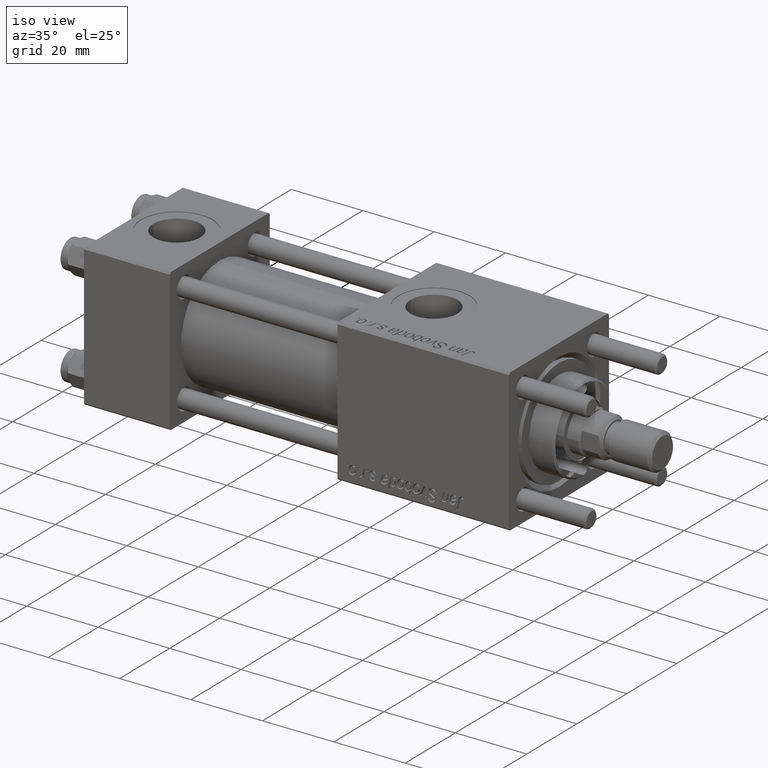
[diagram: clean part render]
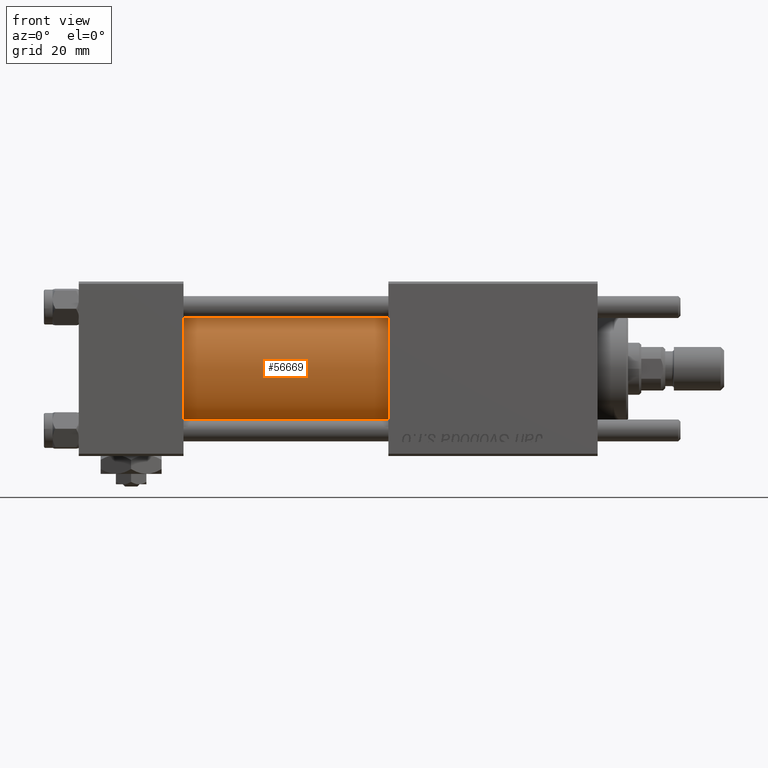
[diagram: tour spotlight — one face highlighted and labeled with its STEP entity id]
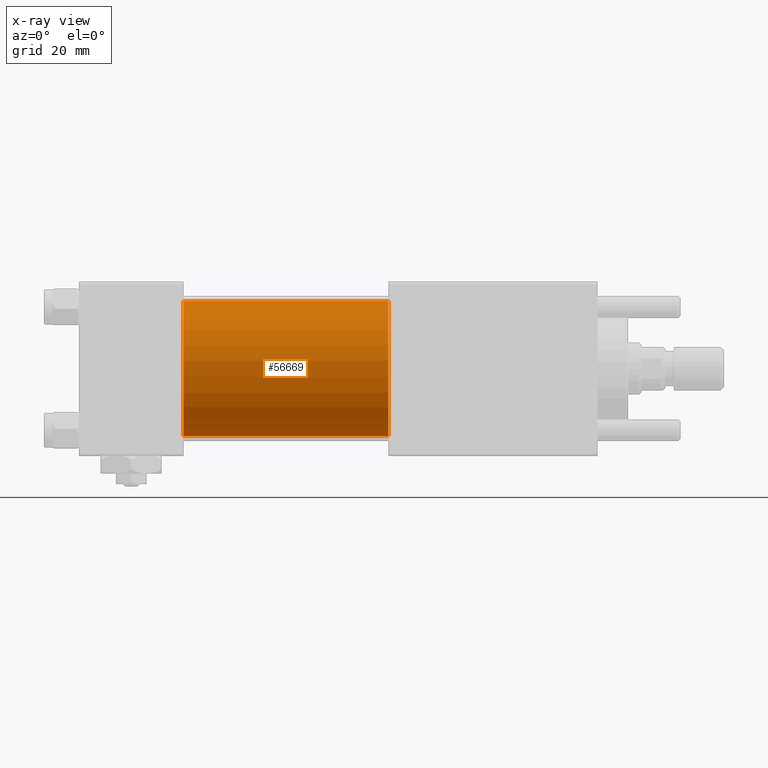
[diagram: x-ray of the same camera — body ghosted, this tour face saturated]
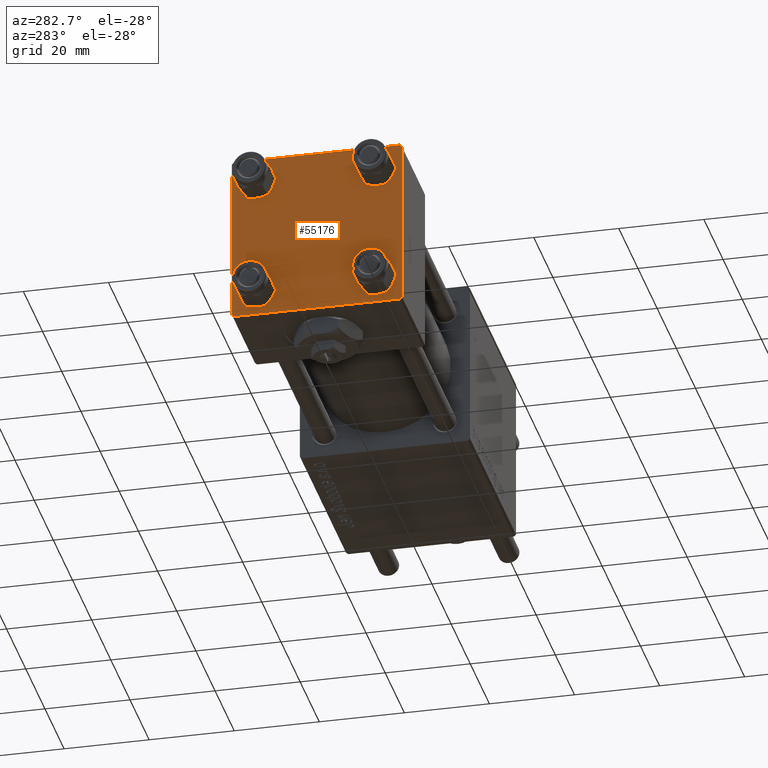
[diagram: tour spotlight — one face highlighted and labeled with its STEP entity id]
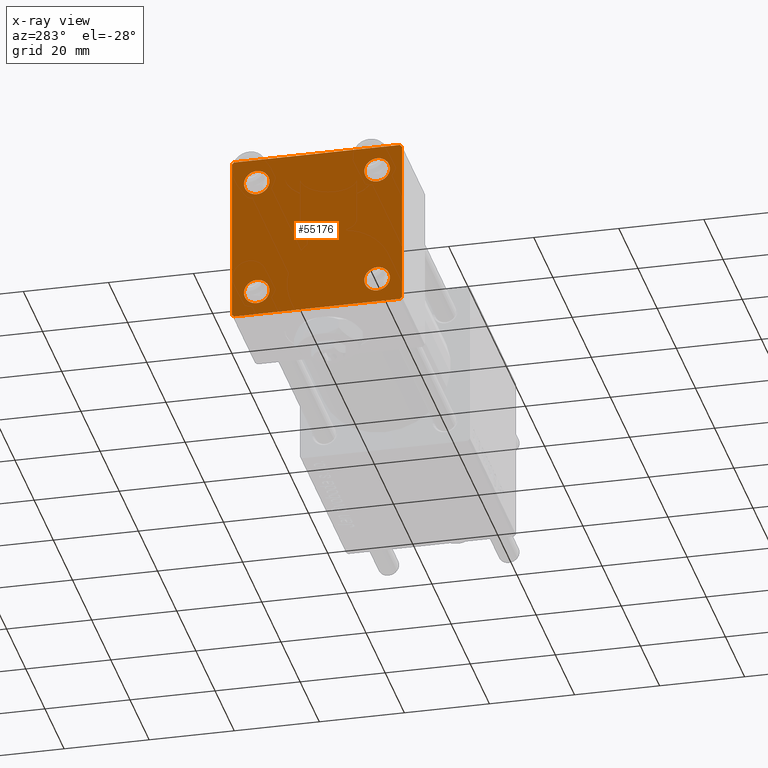
[diagram: x-ray of the same camera — body ghosted, this tour face saturated]
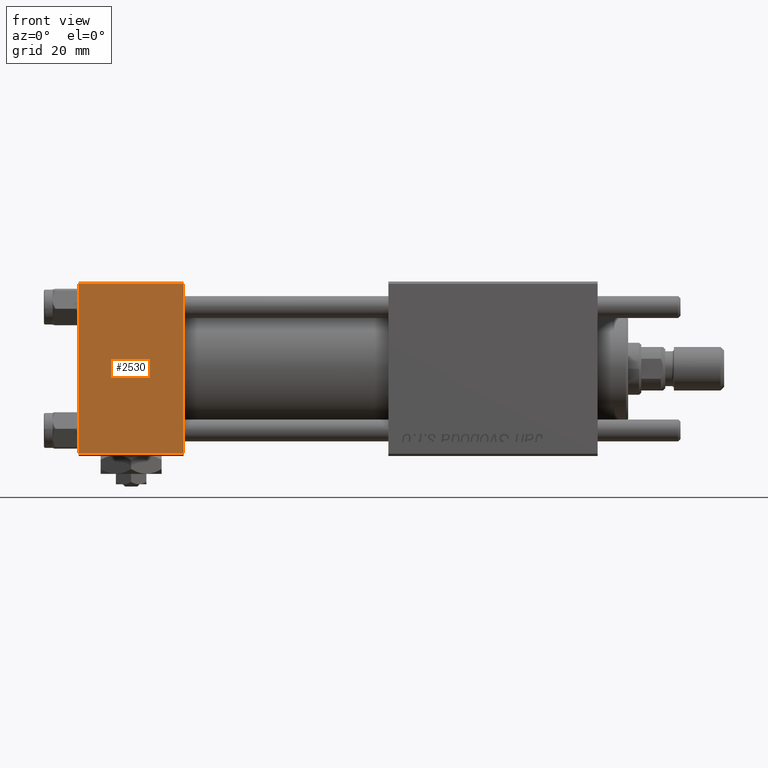
[diagram: tour spotlight — one face highlighted and labeled with its STEP entity id]
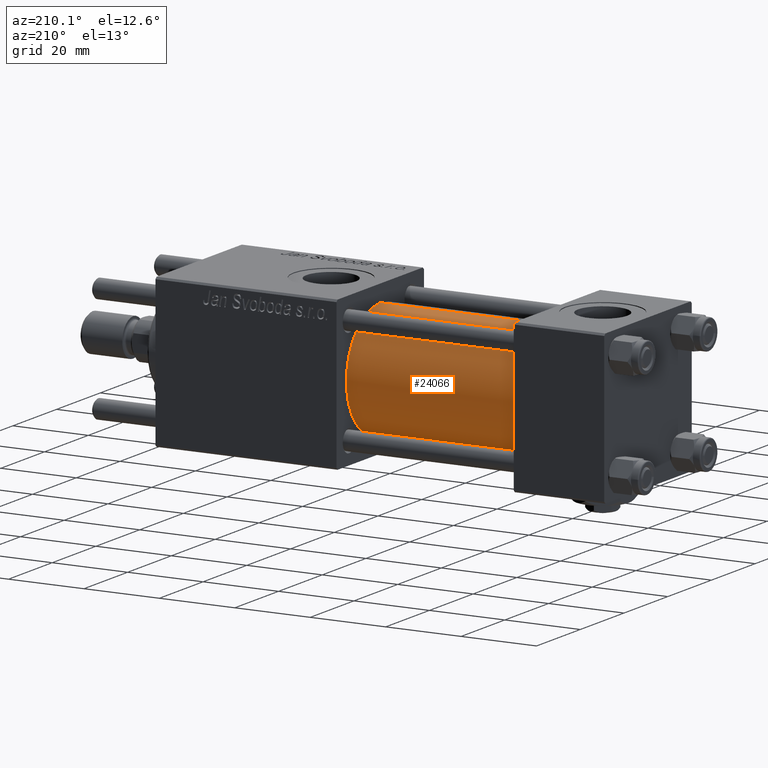
[diagram: tour spotlight — one face highlighted and labeled with its STEP entity id]
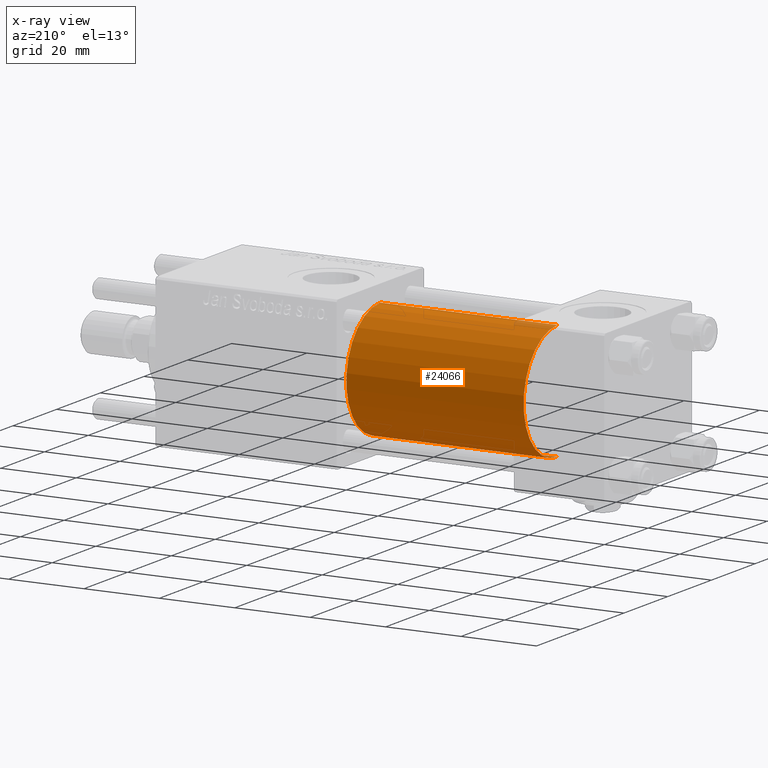
[diagram: x-ray of the same camera — body ghosted, this tour face saturated]
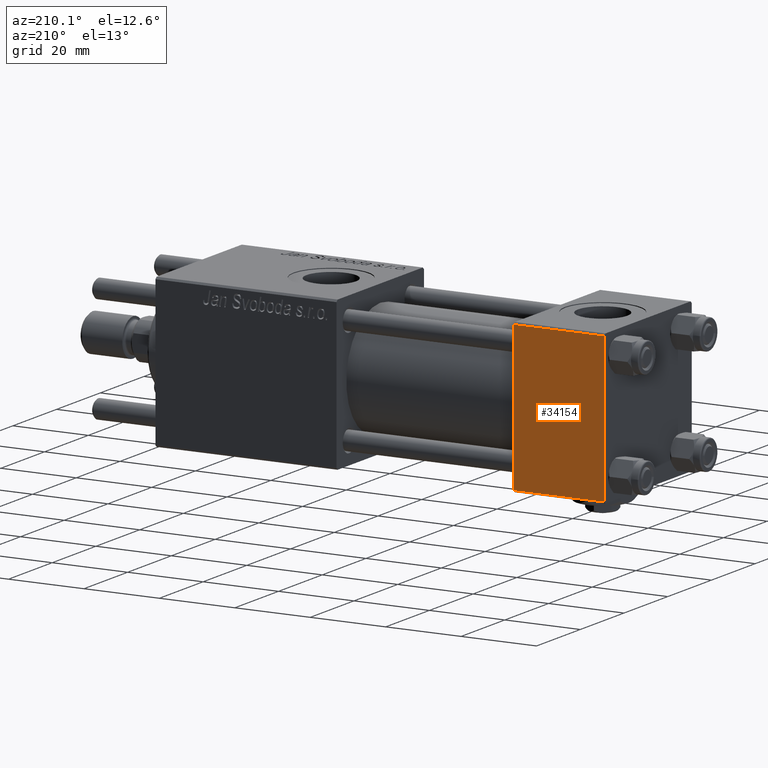
[diagram: tour spotlight — one face highlighted and labeled with its STEP entity id]
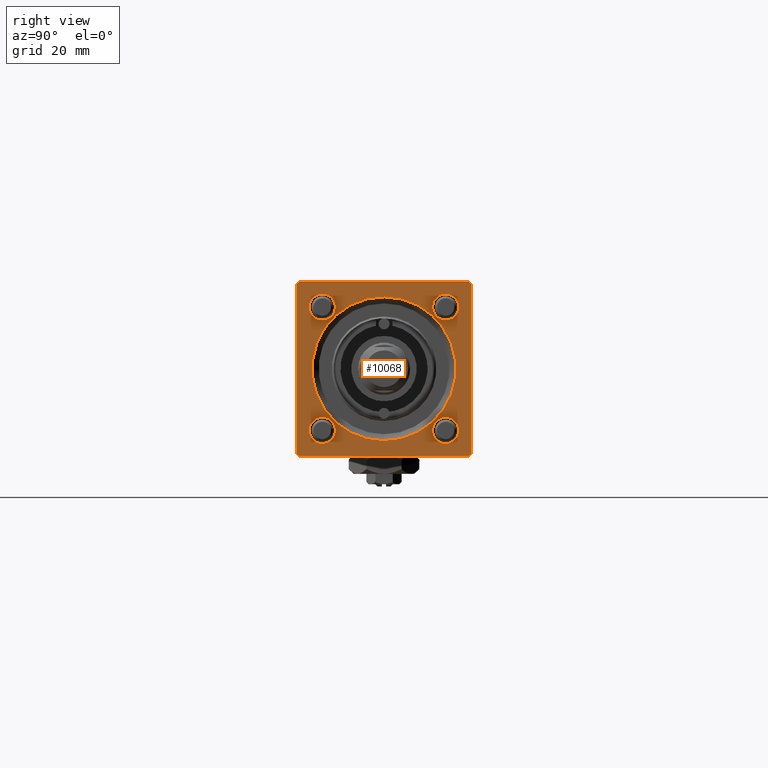
[diagram: tour spotlight — one face highlighted and labeled with its STEP entity id]
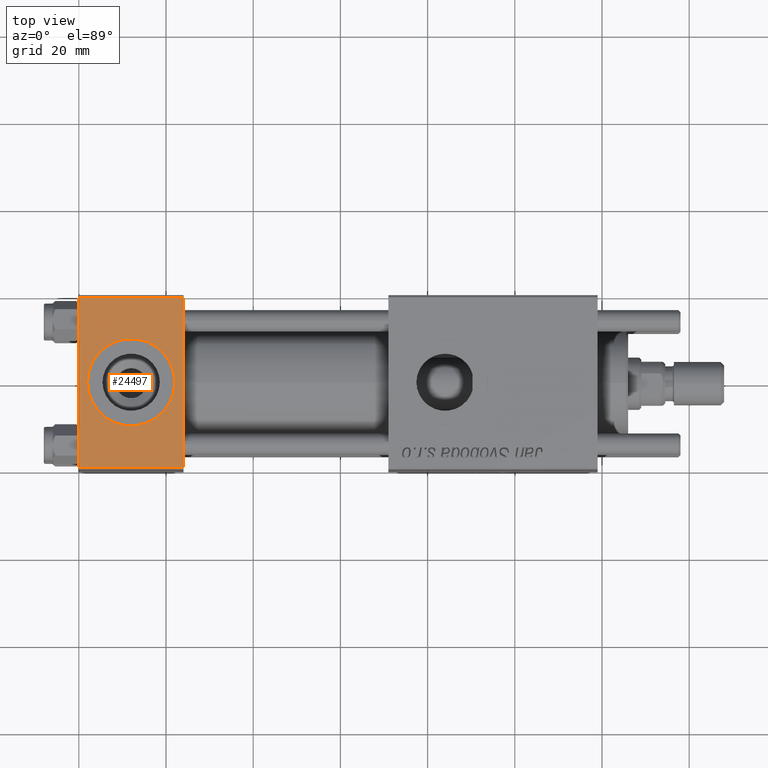
[diagram: tour spotlight — one face highlighted and labeled with its STEP entity id]
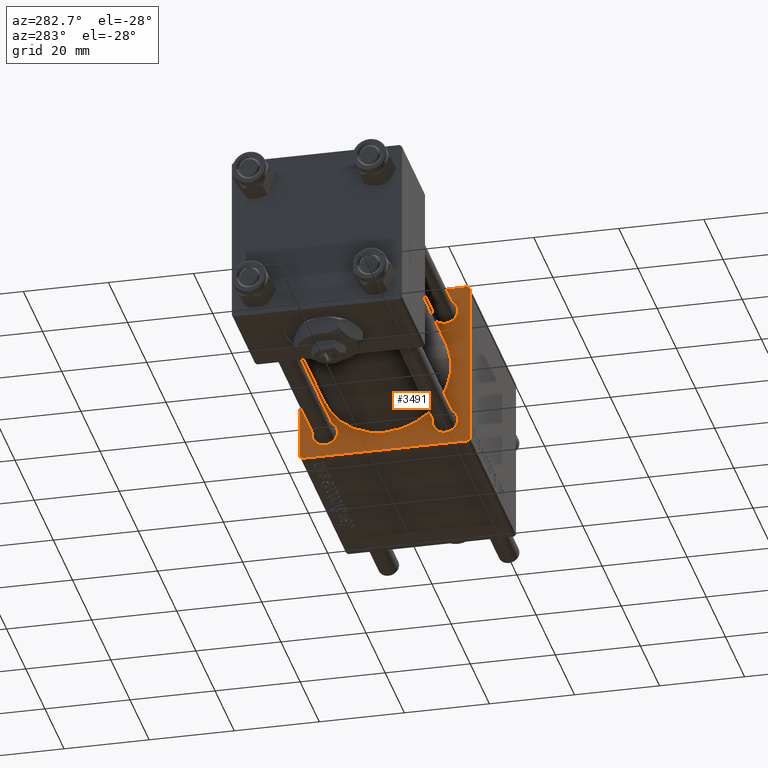
[diagram: tour spotlight — one face highlighted and labeled with its STEP entity id]
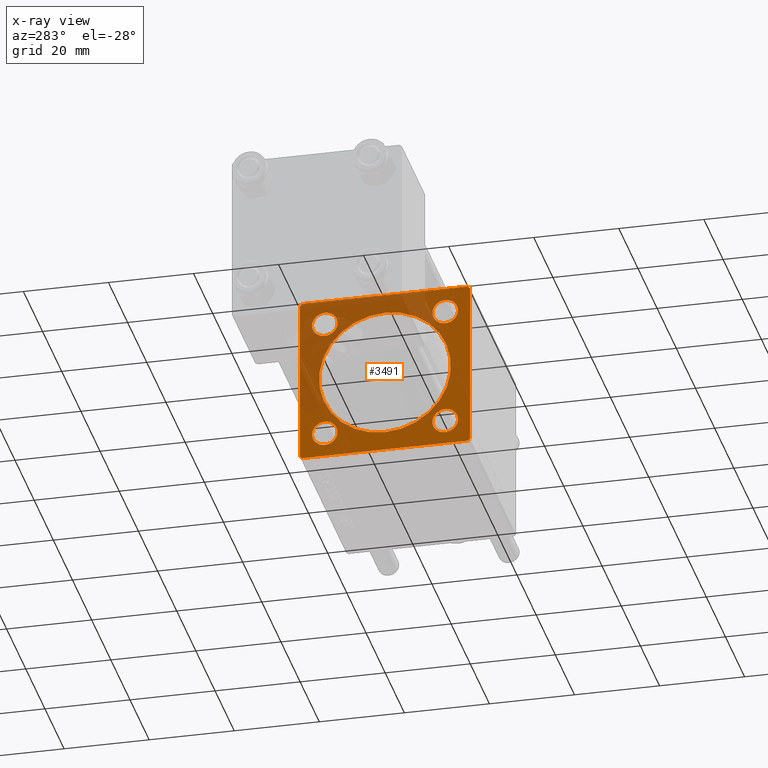
[diagram: x-ray of the same camera — body ghosted, this tour face saturated]
A machine part: a face-by-face anatomy tour. The part has 1228 B-rep faces; the first image is the clean iso view, then the 8 largest visible faces are spotlighted one at a time (largest first), each with its STEP entity span.

Face 1 — front view, entity #56669. An x-ray twin of the same camera follows (body ghosted, this face saturated) — the face is partly hidden behind the body. In plain terms, the highlighted cylindrical surface (partial cylindrical patch) has radius 15.5 mm, axis along (-1, -0, -0).
Definition (entity closure, byte-faithful):
#342 = DIRECTION ( 'NONE',  ( 0.000000000000000000, 0.000000000000000000, 1.000000000000000000 ) ) ;
#1109 = AXIS2_PLACEMENT_3D ( 'NONE', #6075, #24300, #14146 ) ;
#1114 = ORIENTED_EDGE ( 'NONE', *, *, #29731, .T. ) ;
#2161 = CARTESIAN_POINT ( 'NONE',  ( 24.00000000000000000, -7.038826752868131828E-16, -15.50000000000000000 ) ) ;
#2995 = VECTOR ( 'NONE', #48009, 1000.000000000000000 ) ;
#3680 = DIRECTION ( 'NONE',  ( 1.000000000000000000, 0.000000000000000000, 0.000000000000000000 ) ) ;
#4520 = FACE_OUTER_BOUND ( 'NONE', #5338, .T. ) ;
#5131 = ORIENTED_EDGE ( 'NONE', *, *, #50051, .T. ) ;
#5338 = EDGE_LOOP ( 'NONE', ( #18169, #25667, #1114, #5131 ) ) ;
#6075 = CARTESIAN_POINT ( 'NONE',  ( 24.00000000000000000, -2.602085213965210642E-15, 0.000000000000000000 ) ) ;
#7344 = CARTESIAN_POINT ( 'NONE',  ( 71.00000000000001421, -2.602085213965210642E-15, 15.50000000000000000 ) ) ;
#9882 = AXIS2_PLACEMENT_3D ( 'NONE', #18244, #31992, #342 ) ;
#12231 = CARTESIAN_POINT ( 'NONE',  ( 71.00000000000001421, -7.038826752868131828E-16, -15.50000000000000000 ) ) ;
#12413 = CIRCLE ( 'NONE', #34345, 15.50000000000000000 ) ;
#12934 = DIRECTION ( 'NONE',  ( 0.000000000000000000, 0.000000000000000000, -1.000000000000000000 ) ) ;
#13337 = VERTEX_POINT ( 'NONE', #12231 ) ;
#14146 = DIRECTION ( 'NONE',  ( 0.000000000000000000, 0.000000000000000000, 1.000000000000000000 ) ) ;
#15445 = CARTESIAN_POINT ( 'NONE',  ( 71.00000000000001421, -2.602085213965210642E-15, 15.50000000000000000 ) ) ;
#16356 = CARTESIAN_POINT ( 'NONE',  ( 24.00000000000000000, -2.602085213965210642E-15, 15.50000000000000000 ) ) ;
#18169 = ORIENTED_EDGE ( 'NONE', *, *, #54352, .F. ) ;
#18244 = CARTESIAN_POINT ( 'NONE',  ( 71.00000000000001421, -2.602085213965210642E-15, 0.000000000000000000 ) ) ;
#19215 = CIRCLE ( 'NONE', #1109, 15.50000000000000000 ) ;
#24300 = DIRECTION ( 'NONE',  ( 1.000000000000000000, 0.000000000000000000, 0.000000000000000000 ) ) ;
#25274 = CARTESIAN_POINT ( 'NONE',  ( 71.00000000000001421, -7.038826752868131828E-16, -15.50000000000000000 ) ) ;
#25282 = EDGE_CURVE ( 'NONE', #40898, #13337, #12413, .T. ) ;
#25667 = ORIENTED_EDGE ( 'NONE', *, *, #25282, .F. ) ;
#29556 = VERTEX_POINT ( 'NONE', #2161 ) ;
#29731 = EDGE_CURVE ( 'NONE', #40898, #50918, #56972, .T. ) ;
#31992 = DIRECTION ( 'NONE',  ( -1.000000000000000000, -0.000000000000000000, -0.000000000000000000 ) ) ;
#33741 = VECTOR ( 'NONE', #43794, 1000.000000000000000 ) ;
#34345 = AXIS2_PLACEMENT_3D ( 'NONE', #58947, #3680, #12934 ) ;
#40898 = VERTEX_POINT ( 'NONE', #7344 ) ;
#40968 = CYLINDRICAL_SURFACE ( 'NONE', #9882, 15.50000000000000000 ) ;
#43794 = DIRECTION ( 'NONE',  ( -1.000000000000000000, -0.000000000000000000, -0.000000000000000000 ) ) ;
#48009 = DIRECTION ( 'NONE',  ( -1.000000000000000000, -0.000000000000000000, -0.000000000000000000 ) ) ;
#50051 = EDGE_CURVE ( 'NONE', #50918, #29556, #19215, .T. ) ;
#50918 = VERTEX_POINT ( 'NONE', #16356 ) ;
#53053 = LINE ( 'NONE', #25274, #33741 ) ;
#54352 = EDGE_CURVE ( 'NONE', #13337, #29556, #53053, .T. ) ;
#56669 = ADVANCED_FACE ( 'NONE', ( #4520 ), #40968, .T. ) ;
#56972 = LINE ( 'NONE', #15445, #2995 ) ;
#58947 = CARTESIAN_POINT ( 'NONE',  ( 71.00000000000001421, -2.602085213965210642E-15, 0.000000000000000000 ) ) ;

Face 2 — auxiliary view, entity #55176. An x-ray twin of the same camera follows (body ghosted, this face saturated) — the face is partly hidden behind the body. In plain terms, the highlighted planar face has unit normal (-1, 0, 0).
Definition (entity closure, byte-faithful):
#210 = ORIENTED_EDGE ( 'NONE', *, *, #26311, .F. ) ;
#735 = EDGE_CURVE ( 'NONE', #23025, #39581, #9295, .T. ) ;
#1409 = FACE_BOUND ( 'NONE', #5502, .T. ) ;
#1553 = CARTESIAN_POINT ( 'NONE',  ( 0.000000000000000000, -14.14999999999999503, -11.15000000000000036 ) ) ;
#1857 = ORIENTED_EDGE ( 'NONE', *, *, #27379, .T. ) ;
#1882 = CARTESIAN_POINT ( 'NONE',  ( 0.000000000000000000, -14.14999999999999503, -17.15000000000000924 ) ) ;
#1950 = VECTOR ( 'NONE', #38687, 1000.000000000000000 ) ;
#2032 = DIRECTION ( 'NONE',  ( 1.000000000000000000, 0.000000000000000000, 0.000000000000000000 ) ) ;
#2357 = LINE ( 'NONE', #20566, #52515 ) ;
#2480 = VERTEX_POINT ( 'NONE', #37175 ) ;
#2539 = DIRECTION ( 'NONE',  ( 0.000000000000000000, -0.7071067811865401342, 0.7071067811865549002 ) ) ;
#2579 = LINE ( 'NONE', #30052, #29418 ) ;
#3115 = CIRCLE ( 'NONE', #30789, 2.999999999999983569 ) ;
#3814 = CARTESIAN_POINT ( 'NONE',  ( -0.000000000000000000, 19.75000000000013500, 19.74999999999986144 ) ) ;
#4331 = DIRECTION ( 'NONE',  ( 0.000000000000000000, 0.000000000000000000, 1.000000000000000000 ) ) ;
#4351 = ORIENTED_EDGE ( 'NONE', *, *, #38917, .T. ) ;
#4939 = EDGE_CURVE ( 'NONE', #37021, #53378, #17824, .T. ) ;
#5502 = EDGE_LOOP ( 'NONE', ( #36625, #49829 ) ) ;
#6177 = FACE_BOUND ( 'NONE', #16928, .T. ) ;
#6588 = ORIENTED_EDGE ( 'NONE', *, *, #4939, .T. ) ;
#6943 = VERTEX_POINT ( 'NONE', #16710 ) ;
#6968 = VECTOR ( 'NONE', #2539, 1000.000000000000000 ) ;
#7627 = CARTESIAN_POINT ( 'NONE',  ( 0.000000000000000000, 20.00000000000000000, 19.49999999999999289 ) ) ;
#8896 = VERTEX_POINT ( 'NONE', #38257 ) ;
#9202 = CARTESIAN_POINT ( 'NONE',  ( 0.000000000000000000, -14.14999999999999503, 11.15000000000002345 ) ) ;
#9295 = LINE ( 'NONE', #51111, #43452 ) ;
#10461 = CARTESIAN_POINT ( 'NONE',  ( 0.000000000000000000, 14.14999999999999858, -14.15000000000000036 ) ) ;
#10540 = CIRCLE ( 'NONE', #48711, 2.999999999999983569 ) ;
#10953 = PLANE ( 'NONE',  #55650 ) ;
#11232 = EDGE_LOOP ( 'NONE', ( #4351, #38792, #18052, #16054, #210, #24047, #17572, #41605 ) ) ;
#11254 = CARTESIAN_POINT ( 'NONE',  ( 0.000000000000000000, 14.14999999999999858, 14.15000000000000036 ) ) ;
#11284 = CARTESIAN_POINT ( 'NONE',  ( 0.000000000000000000, -14.14999999999999503, -14.15000000000000391 ) ) ;
#13436 = CARTESIAN_POINT ( 'NONE',  ( -0.000000000000000000, -19.74999999999992539, 19.75000000000006395 ) ) ;
#13829 = CARTESIAN_POINT ( 'NONE',  ( 0.000000000000000000, -14.14999999999999503, 14.15000000000000391 ) ) ;
#14686 = CARTESIAN_POINT ( 'NONE',  ( 0.000000000000000000, 14.14999999999999858, -14.15000000000000036 ) ) ;
#14748 = VECTOR ( 'NONE', #46306, 1000.000000000000000 ) ;
#14974 = AXIS2_PLACEMENT_3D ( 'NONE', #44054, #38410, #15683 ) ;
#15107 = EDGE_CURVE ( 'NONE', #39581, #25470, #2579, .T. ) ;
#15683 = DIRECTION ( 'NONE',  ( 0.000000000000000000, 0.000000000000000000, 1.000000000000000000 ) ) ;
#15715 = CARTESIAN_POINT ( 'NONE',  ( 0.000000000000000000, -19.49999999999999289, 19.99999999999998934 ) ) ;
#15725 = FACE_BOUND ( 'NONE', #54807, .T. ) ;
#16054 = ORIENTED_EDGE ( 'NONE', *, *, #34085, .T. ) ;
#16710 = CARTESIAN_POINT ( 'NONE',  ( 0.000000000000000000, -20.00000000000000355, 19.49999999999998224 ) ) ;
#16928 = EDGE_LOOP ( 'NONE', ( #59045, #17604 ) ) ;
#17572 = ORIENTED_EDGE ( 'NONE', *, *, #20877, .F. ) ;
#17604 = ORIENTED_EDGE ( 'NONE', *, *, #55275, .T. ) ;
#17757 = VERTEX_POINT ( 'NONE', #38205 ) ;
#17824 = CIRCLE ( 'NONE', #14974, 3.000000000000004441 ) ;
#18052 = ORIENTED_EDGE ( 'NONE', *, *, #15107, .T. ) ;
#19133 = DIRECTION ( 'NONE',  ( -0.000000000000000000, -0.7071067811865524577, -0.7071067811865426878 ) ) ;
#19156 = EDGE_CURVE ( 'NONE', #2480, #17757, #29532, .T. ) ;
#19916 = DIRECTION ( 'NONE',  ( -1.000000000000000000, 0.000000000000000000, -0.000000000000000000 ) ) ;
#20204 = VECTOR ( 'NONE', #29831, 999.9999999999998863 ) ;
#20566 = CARTESIAN_POINT ( 'NONE',  ( 0.000000000000000000, 20.00000000000000000, 20.00000000000000000 ) ) ;
#20877 = EDGE_CURVE ( 'NONE', #45795, #54344, #2357, .T. ) ;
#21192 = VERTEX_POINT ( 'NONE', #7627 ) ;
#21324 = CARTESIAN_POINT ( 'NONE',  ( 0.000000000000000000, -19.75000000000020961, -19.74999999999979394 ) ) ;
#21378 = CIRCLE ( 'NONE', #57637, 3.000000000000004441 ) ;
#22997 = LINE ( 'NONE', #42118, #14748 ) ;
#23025 = VERTEX_POINT ( 'NONE', #24010 ) ;
#23065 = DIRECTION ( 'NONE',  ( 0.000000000000000000, 0.000000000000000000, 1.000000000000000000 ) ) ;
#24010 = CARTESIAN_POINT ( 'NONE',  ( 0.000000000000000000, 20.00000000000000000, -19.50000000000002132 ) ) ;
#24018 = AXIS2_PLACEMENT_3D ( 'NONE', #36096, #53730, #35205 ) ;
#24047 = ORIENTED_EDGE ( 'NONE', *, *, #47360, .T. ) ;
#24171 = CIRCLE ( 'NONE', #52793, 2.999999999999983569 ) ;
#25230 = CARTESIAN_POINT ( 'NONE',  ( 0.000000000000000000, 14.14999999999999858, -11.15000000000001812 ) ) ;
#25470 = VERTEX_POINT ( 'NONE', #48435 ) ;
#25933 = CIRCLE ( 'NONE', #24018, 2.999999999999983569 ) ;
#26311 = EDGE_CURVE ( 'NONE', #6943, #33723, #35586, .T. ) ;
#26584 = VERTEX_POINT ( 'NONE', #9202 ) ;
#26841 = CARTESIAN_POINT ( 'NONE',  ( 0.000000000000000000, -20.00000000000000000, -19.49999999999999645 ) ) ;
#27379 = EDGE_CURVE ( 'NONE', #31911, #8896, #10540, .T. ) ;
#28543 = AXIS2_PLACEMENT_3D ( 'NONE', #40782, #59001, #4331 ) ;
#28685 = DIRECTION ( 'NONE',  ( 1.000000000000000000, 0.000000000000000000, 0.000000000000000000 ) ) ;
#29249 = EDGE_CURVE ( 'NONE', #44177, #26584, #40218, .T. ) ;
#29418 = VECTOR ( 'NONE', #52185, 1000.000000000000000 ) ;
#29532 = CIRCLE ( 'NONE', #28543, 2.999999999999983569 ) ;
#29831 = DIRECTION ( 'NONE',  ( 0.000000000000000000, 0.7071067811865425767, -0.7071067811865525687 ) ) ;
#30052 = CARTESIAN_POINT ( 'NONE',  ( 0.000000000000000000, 20.00000000000000000, -20.00000000000000711 ) ) ;
#30789 = AXIS2_PLACEMENT_3D ( 'NONE', #10461, #28685, #42444 ) ;
#31384 = EDGE_CURVE ( 'NONE', #26584, #44177, #25933, .T. ) ;
#31911 = VERTEX_POINT ( 'NONE', #25230 ) ;
#32765 = CARTESIAN_POINT ( 'NONE',  ( 0.000000000000000000, 0.000000000000000000, 0.000000000000000000 ) ) ;
#33598 = EDGE_CURVE ( 'NONE', #8896, #31911, #3115, .T. ) ;
#33723 = VERTEX_POINT ( 'NONE', #26841 ) ;
#34085 = EDGE_CURVE ( 'NONE', #25470, #33723, #43472, .T. ) ;
#35205 = DIRECTION ( 'NONE',  ( 0.000000000000000000, 0.000000000000000000, 1.000000000000000000 ) ) ;
#35489 = LINE ( 'NONE', #3814, #20204 ) ;
#35586 = LINE ( 'NONE', #57992, #1950 ) ;
#36096 = CARTESIAN_POINT ( 'NONE',  ( 0.000000000000000000, -14.14999999999999503, 14.15000000000000391 ) ) ;
#36481 = EDGE_LOOP ( 'NONE', ( #1857, #57370 ) ) ;
#36625 = ORIENTED_EDGE ( 'NONE', *, *, #29249, .T. ) ;
#37021 = VERTEX_POINT ( 'NONE', #1553 ) ;
#37175 = CARTESIAN_POINT ( 'NONE',  ( 0.000000000000000000, 14.14999999999999858, 17.14999999999998437 ) ) ;
#37857 = FACE_OUTER_BOUND ( 'NONE', #11232, .T. ) ;
#38186 = DIRECTION ( 'NONE',  ( 0.000000000000000000, 0.000000000000000000, 1.000000000000000000 ) ) ;
#38205 = CARTESIAN_POINT ( 'NONE',  ( 0.000000000000000000, 14.14999999999999858, 11.15000000000001990 ) ) ;
#38257 = CARTESIAN_POINT ( 'NONE',  ( 0.000000000000000000, 14.14999999999999858, -17.14999999999998437 ) ) ;
#38410 = DIRECTION ( 'NONE',  ( 1.000000000000000000, 0.000000000000000000, 0.000000000000000000 ) ) ;
#38687 = DIRECTION ( 'NONE',  ( 0.000000000000000000, 8.673617379884036705E-17, -1.000000000000000000 ) ) ;
#38792 = ORIENTED_EDGE ( 'NONE', *, *, #735, .T. ) ;
#38806 = DIRECTION ( 'NONE',  ( 0.000000000000000000, -1.000000000000000000, -2.602085213965210149E-16 ) ) ;
#38917 = EDGE_CURVE ( 'NONE', #21192, #23025, #22997, .T. ) ;
#39019 = DIRECTION ( 'NONE',  ( 1.000000000000000000, 0.000000000000000000, 0.000000000000000000 ) ) ;
#39581 = VERTEX_POINT ( 'NONE', #47861 ) ;
#40218 = CIRCLE ( 'NONE', #55491, 2.999999999999983569 ) ;
#40736 = DIRECTION ( 'NONE',  ( 1.000000000000000000, 0.000000000000000000, 0.000000000000000000 ) ) ;
#40782 = CARTESIAN_POINT ( 'NONE',  ( 0.000000000000000000, 14.14999999999999858, 14.15000000000000036 ) ) ;
#41605 = ORIENTED_EDGE ( 'NONE', *, *, #51004, .T. ) ;
#42118 = CARTESIAN_POINT ( 'NONE',  ( 0.000000000000000000, 20.00000000000000000, 20.00000000000000000 ) ) ;
#42444 = DIRECTION ( 'NONE',  ( 0.000000000000000000, 0.000000000000000000, 1.000000000000000000 ) ) ;
#43452 = VECTOR ( 'NONE', #19133, 1000.000000000000000 ) ;
#43472 = LINE ( 'NONE', #21324, #6968 ) ;
#44054 = CARTESIAN_POINT ( 'NONE',  ( 0.000000000000000000, -14.14999999999999503, -14.15000000000000391 ) ) ;
#44177 = VERTEX_POINT ( 'NONE', #46773 ) ;
#45709 = LINE ( 'NONE', #13436, #51732 ) ;
#45783 = DIRECTION ( 'NONE',  ( 1.000000000000000000, 0.000000000000000000, 0.000000000000000000 ) ) ;
#45795 = VERTEX_POINT ( 'NONE', #55304 ) ;
#46001 = DIRECTION ( 'NONE',  ( -0.000000000000000000, 0.7071067811865500152, 0.7071067811865451302 ) ) ;
#46306 = DIRECTION ( 'NONE',  ( 0.000000000000000000, 0.000000000000000000, -1.000000000000000000 ) ) ;
#46773 = CARTESIAN_POINT ( 'NONE',  ( 0.000000000000000000, -14.14999999999999503, 17.14999999999998792 ) ) ;
#47115 = DIRECTION ( 'NONE',  ( -0.000000000000000000, 0.000000000000000000, 1.000000000000000000 ) ) ;
#47360 = EDGE_CURVE ( 'NONE', #6943, #54344, #45709, .T. ) ;
#47415 = FACE_BOUND ( 'NONE', #36481, .T. ) ;
#47861 = CARTESIAN_POINT ( 'NONE',  ( 0.000000000000000000, 19.50000000000000711, -20.00000000000000711 ) ) ;
#47995 = DIRECTION ( 'NONE',  ( 0.000000000000000000, 0.000000000000000000, 1.000000000000000000 ) ) ;
#48435 = CARTESIAN_POINT ( 'NONE',  ( 0.000000000000000000, -19.50000000000000711, -20.00000000000000000 ) ) ;
#48711 = AXIS2_PLACEMENT_3D ( 'NONE', #14686, #45783, #23065 ) ;
#49829 = ORIENTED_EDGE ( 'NONE', *, *, #31384, .T. ) ;
#51004 = EDGE_CURVE ( 'NONE', #45795, #21192, #35489, .T. ) ;
#51111 = CARTESIAN_POINT ( 'NONE',  ( -0.000000000000000000, 19.74999999999986855, -19.75000000000014211 ) ) ;
#51732 = VECTOR ( 'NONE', #46001, 1000.000000000000114 ) ;
#52185 = DIRECTION ( 'NONE',  ( 0.000000000000000000, -1.000000000000000000, 1.734723475976807094E-16 ) ) ;
#52515 = VECTOR ( 'NONE', #38806, 1000.000000000000000 ) ;
#52793 = AXIS2_PLACEMENT_3D ( 'NONE', #11254, #39019, #47995 ) ;
#53378 = VERTEX_POINT ( 'NONE', #1882 ) ;
#53730 = DIRECTION ( 'NONE',  ( 1.000000000000000000, 0.000000000000000000, 0.000000000000000000 ) ) ;
#54344 = VERTEX_POINT ( 'NONE', #15715 ) ;
#54807 = EDGE_LOOP ( 'NONE', ( #6588, #56711 ) ) ;
#55056 = DIRECTION ( 'NONE',  ( 0.000000000000000000, 0.000000000000000000, 1.000000000000000000 ) ) ;
#55176 = ADVANCED_FACE ( 'NONE', ( #1409, #15725, #47415, #6177, #37857 ), #10953, .T. ) ;
#55275 = EDGE_CURVE ( 'NONE', #17757, #2480, #24171, .T. ) ;
#55304 = CARTESIAN_POINT ( 'NONE',  ( 0.000000000000000000, 19.50000000000000000, 20.00000000000000000 ) ) ;
#55491 = AXIS2_PLACEMENT_3D ( 'NONE', #13829, #40736, #55056 ) ;
#55650 = AXIS2_PLACEMENT_3D ( 'NONE', #32765, #19916, #47115 ) ;
#56711 = ORIENTED_EDGE ( 'NONE', *, *, #57002, .T. ) ;
#57002 = EDGE_CURVE ( 'NONE', #53378, #37021, #21378, .T. ) ;
#57370 = ORIENTED_EDGE ( 'NONE', *, *, #33598, .T. ) ;
#57637 = AXIS2_PLACEMENT_3D ( 'NONE', #11284, #2032, #38186 ) ;
#57992 = CARTESIAN_POINT ( 'NONE',  ( 0.000000000000000000, -20.00000000000000355, 19.99999999999998934 ) ) ;
#59001 = DIRECTION ( 'NONE',  ( 1.000000000000000000, 0.000000000000000000, 0.000000000000000000 ) ) ;
#59045 = ORIENTED_EDGE ( 'NONE', *, *, #19156, .T. ) ;

Face 3 — front view, entity #2530. In plain terms, the highlighted planar face has unit normal (0, 1, 0).
Definition (entity closure, byte-faithful):
#1328 = DIRECTION ( 'NONE',  ( -0.000000000000000000, 1.000000000000000000, 8.673617379884036705E-17 ) ) ;
#1950 = VECTOR ( 'NONE', #38687, 1000.000000000000000 ) ;
#2530 = ADVANCED_FACE ( 'NONE', ( #33579 ), #15045, .F. ) ;
#5566 = ORIENTED_EDGE ( 'NONE', *, *, #48591, .F. ) ;
#6943 = VERTEX_POINT ( 'NONE', #16710 ) ;
#7109 = VERTEX_POINT ( 'NONE', #37236 ) ;
#9106 = DIRECTION ( 'NONE',  ( 1.000000000000000000, 0.000000000000000000, 0.000000000000000000 ) ) ;
#10570 = DIRECTION ( 'NONE',  ( 0.000000000000000000, -8.673617379884036705E-17, 1.000000000000000000 ) ) ;
#10646 = ORIENTED_EDGE ( 'NONE', *, *, #26311, .T. ) ;
#15045 = PLANE ( 'NONE',  #53074 ) ;
#16710 = CARTESIAN_POINT ( 'NONE',  ( 0.000000000000000000, -20.00000000000000355, 19.49999999999998224 ) ) ;
#17176 = DIRECTION ( 'NONE',  ( -1.000000000000000000, 0.000000000000000000, 0.000000000000000000 ) ) ;
#19569 = VECTOR ( 'NONE', #17176, 1000.000000000000000 ) ;
#19830 = CARTESIAN_POINT ( 'NONE',  ( 24.00000000000000000, -20.00000000000000355, 19.99999999999998934 ) ) ;
#21077 = LINE ( 'NONE', #48575, #19569 ) ;
#21261 = EDGE_CURVE ( 'NONE', #33723, #7109, #44979, .T. ) ;
#21486 = ORIENTED_EDGE ( 'NONE', *, *, #21261, .T. ) ;
#22251 = CARTESIAN_POINT ( 'NONE',  ( 24.00000000000000000, -20.00000000000000000, -19.49999999999999645 ) ) ;
#26311 = EDGE_CURVE ( 'NONE', #6943, #33723, #35586, .T. ) ;
#26841 = CARTESIAN_POINT ( 'NONE',  ( 0.000000000000000000, -20.00000000000000000, -19.49999999999999645 ) ) ;
#28677 = VERTEX_POINT ( 'NONE', #39982 ) ;
#30364 = LINE ( 'NONE', #38478, #55425 ) ;
#32096 = ORIENTED_EDGE ( 'NONE', *, *, #39407, .T. ) ;
#33579 = FACE_OUTER_BOUND ( 'NONE', #55159, .T. ) ;
#33723 = VERTEX_POINT ( 'NONE', #26841 ) ;
#35586 = LINE ( 'NONE', #57992, #1950 ) ;
#37236 = CARTESIAN_POINT ( 'NONE',  ( 24.00000000000000000, -20.00000000000000000, -19.49999999999999645 ) ) ;
#38478 = CARTESIAN_POINT ( 'NONE',  ( 24.00000000000000000, -20.00000000000000355, 19.99999999999998934 ) ) ;
#38687 = DIRECTION ( 'NONE',  ( 0.000000000000000000, 8.673617379884036705E-17, -1.000000000000000000 ) ) ;
#39407 = EDGE_CURVE ( 'NONE', #28677, #6943, #21077, .T. ) ;
#39982 = CARTESIAN_POINT ( 'NONE',  ( 24.00000000000000000, -20.00000000000000355, 19.49999999999998224 ) ) ;
#43830 = DIRECTION ( 'NONE',  ( 0.000000000000000000, 8.673617379884036705E-17, -1.000000000000000000 ) ) ;
#44979 = LINE ( 'NONE', #22251, #45827 ) ;
#45827 = VECTOR ( 'NONE', #9106, 1000.000000000000000 ) ;
#48575 = CARTESIAN_POINT ( 'NONE',  ( 24.00000000000000000, -20.00000000000000355, 19.49999999999998224 ) ) ;
#48591 = EDGE_CURVE ( 'NONE', #28677, #7109, #30364, .T. ) ;
#53074 = AXIS2_PLACEMENT_3D ( 'NONE', #19830, #1328, #10570 ) ;
#55159 = EDGE_LOOP ( 'NONE', ( #10646, #21486, #5566, #32096 ) ) ;
#55425 = VECTOR ( 'NONE', #43830, 1000.000000000000000 ) ;
#57992 = CARTESIAN_POINT ( 'NONE',  ( 0.000000000000000000, -20.00000000000000355, 19.99999999999998934 ) ) ;

Face 4 — auxiliary view, entity #24066. An x-ray twin of the same camera follows (body ghosted, this face saturated) — the face is partly hidden behind the body. In plain terms, the highlighted cylindrical surface (partial cylindrical patch) has radius 15.5 mm, axis along (-1, -0, -0).
Definition (entity closure, byte-faithful):
#961 = DIRECTION ( 'NONE',  ( 0.000000000000000000, 0.000000000000000000, -1.000000000000000000 ) ) ;
#2161 = CARTESIAN_POINT ( 'NONE',  ( 24.00000000000000000, -7.038826752868131828E-16, -15.50000000000000000 ) ) ;
#2320 = CIRCLE ( 'NONE', #14710, 15.50000000000000000 ) ;
#2995 = VECTOR ( 'NONE', #48009, 1000.000000000000000 ) ;
#4248 = EDGE_CURVE ( 'NONE', #29556, #50918, #6378, .T. ) ;
#5723 = CARTESIAN_POINT ( 'NONE',  ( 71.00000000000001421, -2.602085213965210642E-15, 0.000000000000000000 ) ) ;
#6378 = CIRCLE ( 'NONE', #53117, 15.50000000000000000 ) ;
#7344 = CARTESIAN_POINT ( 'NONE',  ( 71.00000000000001421, -2.602085213965210642E-15, 15.50000000000000000 ) ) ;
#9029 = DIRECTION ( 'NONE',  ( -1.000000000000000000, -0.000000000000000000, -0.000000000000000000 ) ) ;
#12231 = CARTESIAN_POINT ( 'NONE',  ( 71.00000000000001421, -7.038826752868131828E-16, -15.50000000000000000 ) ) ;
#12293 = CARTESIAN_POINT ( 'NONE',  ( 24.00000000000000000, -2.602085213965210642E-15, 0.000000000000000000 ) ) ;
#13337 = VERTEX_POINT ( 'NONE', #12231 ) ;
#14101 = DIRECTION ( 'NONE',  ( 0.000000000000000000, 0.000000000000000000, 1.000000000000000000 ) ) ;
#14710 = AXIS2_PLACEMENT_3D ( 'NONE', #5723, #42487, #961 ) ;
#15445 = CARTESIAN_POINT ( 'NONE',  ( 71.00000000000001421, -2.602085213965210642E-15, 15.50000000000000000 ) ) ;
#16356 = CARTESIAN_POINT ( 'NONE',  ( 24.00000000000000000, -2.602085213965210642E-15, 15.50000000000000000 ) ) ;
#17388 = ORIENTED_EDGE ( 'NONE', *, *, #4248, .T. ) ;
#24066 = ADVANCED_FACE ( 'NONE', ( #40715 ), #28141, .T. ) ;
#25274 = CARTESIAN_POINT ( 'NONE',  ( 71.00000000000001421, -7.038826752868131828E-16, -15.50000000000000000 ) ) ;
#28141 = CYLINDRICAL_SURFACE ( 'NONE', #58182, 15.50000000000000000 ) ;
#28482 = ORIENTED_EDGE ( 'NONE', *, *, #37004, .F. ) ;
#29556 = VERTEX_POINT ( 'NONE', #2161 ) ;
#29731 = EDGE_CURVE ( 'NONE', #40898, #50918, #56972, .T. ) ;
#29822 = EDGE_LOOP ( 'NONE', ( #28482, #40099, #17388, #43629 ) ) ;
#29934 = DIRECTION ( 'NONE',  ( 0.000000000000000000, 0.000000000000000000, 1.000000000000000000 ) ) ;
#31107 = DIRECTION ( 'NONE',  ( 1.000000000000000000, 0.000000000000000000, 0.000000000000000000 ) ) ;
#33741 = VECTOR ( 'NONE', #43794, 1000.000000000000000 ) ;
#37004 = EDGE_CURVE ( 'NONE', #13337, #40898, #2320, .T. ) ;
#40099 = ORIENTED_EDGE ( 'NONE', *, *, #54352, .T. ) ;
#40715 = FACE_OUTER_BOUND ( 'NONE', #29822, .T. ) ;
#40898 = VERTEX_POINT ( 'NONE', #7344 ) ;
#41594 = CARTESIAN_POINT ( 'NONE',  ( 71.00000000000001421, -2.602085213965210642E-15, 0.000000000000000000 ) ) ;
#42487 = DIRECTION ( 'NONE',  ( 1.000000000000000000, 0.000000000000000000, 0.000000000000000000 ) ) ;
#43629 = ORIENTED_EDGE ( 'NONE', *, *, #29731, .F. ) ;
#43794 = DIRECTION ( 'NONE',  ( -1.000000000000000000, -0.000000000000000000, -0.000000000000000000 ) ) ;
#48009 = DIRECTION ( 'NONE',  ( -1.000000000000000000, -0.000000000000000000, -0.000000000000000000 ) ) ;
#50918 = VERTEX_POINT ( 'NONE', #16356 ) ;
#53053 = LINE ( 'NONE', #25274, #33741 ) ;
#53117 = AXIS2_PLACEMENT_3D ( 'NONE', #12293, #31107, #29934 ) ;
#54352 = EDGE_CURVE ( 'NONE', #13337, #29556, #53053, .T. ) ;
#56972 = LINE ( 'NONE', #15445, #2995 ) ;
#58182 = AXIS2_PLACEMENT_3D ( 'NONE', #41594, #9029, #14101 ) ;

Face 5 — auxiliary view, entity #34154. In plain terms, the highlighted planar face has unit normal (0, 1, 0).
Definition (entity closure, byte-faithful):
#3230 = EDGE_CURVE ( 'NONE', #31804, #23025, #3614, .T. ) ;
#3614 = LINE ( 'NONE', #16456, #12037 ) ;
#7627 = CARTESIAN_POINT ( 'NONE',  ( 0.000000000000000000, 20.00000000000000000, 19.49999999999999289 ) ) ;
#7947 = ORIENTED_EDGE ( 'NONE', *, *, #38917, .F. ) ;
#10941 = LINE ( 'NONE', #23496, #24593 ) ;
#11702 = DIRECTION ( 'NONE',  ( -1.000000000000000000, 0.000000000000000000, 0.000000000000000000 ) ) ;
#12037 = VECTOR ( 'NONE', #11702, 1000.000000000000000 ) ;
#12517 = EDGE_LOOP ( 'NONE', ( #49659, #12830, #7947, #15637 ) ) ;
#12830 = ORIENTED_EDGE ( 'NONE', *, *, #3230, .T. ) ;
#14150 = EDGE_CURVE ( 'NONE', #21192, #18988, #10941, .T. ) ;
#14748 = VECTOR ( 'NONE', #46306, 1000.000000000000000 ) ;
#15637 = ORIENTED_EDGE ( 'NONE', *, *, #14150, .T. ) ;
#16456 = CARTESIAN_POINT ( 'NONE',  ( 24.00000000000000000, 20.00000000000000000, -19.50000000000002132 ) ) ;
#18081 = VECTOR ( 'NONE', #27560, 1000.000000000000000 ) ;
#18988 = VERTEX_POINT ( 'NONE', #43002 ) ;
#19002 = DIRECTION ( 'NONE',  ( 1.000000000000000000, 0.000000000000000000, 0.000000000000000000 ) ) ;
#19497 = EDGE_CURVE ( 'NONE', #18988, #31804, #54741, .T. ) ;
#21083 = CARTESIAN_POINT ( 'NONE',  ( 24.00000000000000000, 20.00000000000000000, -19.50000000000002132 ) ) ;
#21192 = VERTEX_POINT ( 'NONE', #7627 ) ;
#22997 = LINE ( 'NONE', #42118, #14748 ) ;
#23025 = VERTEX_POINT ( 'NONE', #24010 ) ;
#23496 = CARTESIAN_POINT ( 'NONE',  ( 24.00000000000000000, 20.00000000000000000, 19.49999999999999289 ) ) ;
#24010 = CARTESIAN_POINT ( 'NONE',  ( 0.000000000000000000, 20.00000000000000000, -19.50000000000002132 ) ) ;
#24593 = VECTOR ( 'NONE', #19002, 1000.000000000000000 ) ;
#27560 = DIRECTION ( 'NONE',  ( 0.000000000000000000, 0.000000000000000000, -1.000000000000000000 ) ) ;
#29718 = DIRECTION ( 'NONE',  ( 0.000000000000000000, -0.000000000000000000, 1.000000000000000000 ) ) ;
#31804 = VERTEX_POINT ( 'NONE', #21083 ) ;
#34154 = ADVANCED_FACE ( 'NONE', ( #53017 ), #48526, .T. ) ;
#34208 = DIRECTION ( 'NONE',  ( -0.000000000000000000, 1.000000000000000000, 0.000000000000000000 ) ) ;
#38917 = EDGE_CURVE ( 'NONE', #21192, #23025, #22997, .T. ) ;
#42118 = CARTESIAN_POINT ( 'NONE',  ( 0.000000000000000000, 20.00000000000000000, 20.00000000000000000 ) ) ;
#43002 = CARTESIAN_POINT ( 'NONE',  ( 24.00000000000000000, 20.00000000000000000, 19.49999999999999289 ) ) ;
#43231 = AXIS2_PLACEMENT_3D ( 'NONE', #56618, #34208, #29718 ) ;
#46306 = DIRECTION ( 'NONE',  ( 0.000000000000000000, 0.000000000000000000, -1.000000000000000000 ) ) ;
#48526 = PLANE ( 'NONE',  #43231 ) ;
#49659 = ORIENTED_EDGE ( 'NONE', *, *, #19497, .T. ) ;
#50269 = CARTESIAN_POINT ( 'NONE',  ( 24.00000000000000000, 20.00000000000000000, 20.00000000000000000 ) ) ;
#53017 = FACE_OUTER_BOUND ( 'NONE', #12517, .T. ) ;
#54741 = LINE ( 'NONE', #50269, #18081 ) ;
#56618 = CARTESIAN_POINT ( 'NONE',  ( 24.00000000000000000, 20.00000000000000000, 20.00000000000000000 ) ) ;

Face 6 — right view, entity #10068. In plain terms, the highlighted planar face has unit normal (-1, 0, 0).
Definition (entity closure, byte-faithful):
#339 = ORIENTED_EDGE ( 'NONE', *, *, #53003, .T. ) ;
#982 = LINE ( 'NONE', #55647, #18683 ) ;
#1047 = VECTOR ( 'NONE', #25834, 1000.000000000000000 ) ;
#1289 = VERTEX_POINT ( 'NONE', #58463 ) ;
#1823 = CARTESIAN_POINT ( 'NONE',  ( 119.0000000000000142, 0.000000000000000000, 0.000000000000000000 ) ) ;
#1951 = LINE ( 'NONE', #56902, #11720 ) ;
#2322 = CARTESIAN_POINT ( 'NONE',  ( 119.0000000000000142, -14.15000000000000036, 17.14999999999997726 ) ) ;
#2614 = EDGE_CURVE ( 'NONE', #9908, #3700, #34172, .T. ) ;
#3163 = EDGE_CURVE ( 'NONE', #1289, #53800, #982, .T. ) ;
#3326 = AXIS2_PLACEMENT_3D ( 'NONE', #9784, #32480, #42355 ) ;
#3563 = EDGE_LOOP ( 'NONE', ( #30700, #28547 ) ) ;
#3700 = VERTEX_POINT ( 'NONE', #46839 ) ;
#3994 = CIRCLE ( 'NONE', #24041, 3.000000000000004441 ) ;
#5199 = CARTESIAN_POINT ( 'NONE',  ( 119.0000000000000142, 19.99999999999999645, -19.50000000000000000 ) ) ;
#5357 = CARTESIAN_POINT ( 'NONE',  ( 119.0000000000000142, -14.15000000000000036, -17.15000000000000568 ) ) ;
#5527 = DIRECTION ( 'NONE',  ( -0.000000000000000000, 0.7071067811865474617, 0.7071067811865474617 ) ) ;
#5682 = CARTESIAN_POINT ( 'NONE',  ( 119.0000000000000142, -19.50000000000001776, 19.99999999999999645 ) ) ;
#5694 = FACE_BOUND ( 'NONE', #14087, .T. ) ;
#5841 = ORIENTED_EDGE ( 'NONE', *, *, #3163, .T. ) ;
#6047 = CIRCLE ( 'NONE', #20375, 3.000000000000000888 ) ;
#6197 = LINE ( 'NONE', #56093, #16241 ) ;
#6306 = DIRECTION ( 'NONE',  ( 0.000000000000000000, 0.000000000000000000, 1.000000000000000000 ) ) ;
#6425 = CIRCLE ( 'NONE', #49328, 16.50000000000001421 ) ;
#6769 = DIRECTION ( 'NONE',  ( -1.000000000000000000, -0.000000000000000000, -0.000000000000000000 ) ) ;
#6978 = VERTEX_POINT ( 'NONE', #42088 ) ;
#7248 = CARTESIAN_POINT ( 'NONE',  ( 119.0000000000000142, 14.15000000000000036, 11.14999999999999858 ) ) ;
#7278 = CIRCLE ( 'NONE', #43535, 2.999999999999973355 ) ;
#7304 = CARTESIAN_POINT ( 'NONE',  ( 119.0000000000000142, 0.000000000000000000, 0.000000000000000000 ) ) ;
#7517 = VECTOR ( 'NONE', #55093, 1000.000000000000000 ) ;
#7725 = ORIENTED_EDGE ( 'NONE', *, *, #17107, .T. ) ;
#8490 = AXIS2_PLACEMENT_3D ( 'NONE', #30668, #21702, #25027 ) ;
#9096 = EDGE_CURVE ( 'NONE', #48606, #43137, #7278, .T. ) ;
#9784 = CARTESIAN_POINT ( 'NONE',  ( 119.0000000000000142, 14.15000000000000036, -14.15000000000000036 ) ) ;
#9908 = VERTEX_POINT ( 'NONE', #45460 ) ;
#10068 = ADVANCED_FACE ( 'NONE', ( #10178, #33174, #5694, #37672, #34645, #15539 ), #29872, .F. ) ;
#10116 = ORIENTED_EDGE ( 'NONE', *, *, #9096, .T. ) ;
#10178 = FACE_BOUND ( 'NONE', #26170, .T. ) ;
#10702 = AXIS2_PLACEMENT_3D ( 'NONE', #44750, #40254, #58481 ) ;
#10786 = CARTESIAN_POINT ( 'NONE',  ( 119.0000000000000142, -14.15000000000000036, -14.15000000000000036 ) ) ;
#10843 = CARTESIAN_POINT ( 'NONE',  ( 119.0000000000000142, -20.00000000000000355, 19.50000000000002487 ) ) ;
#11265 = DIRECTION ( 'NONE',  ( 0.000000000000000000, 8.673617379884036705E-17, -1.000000000000000000 ) ) ;
#11338 = DIRECTION ( 'NONE',  ( -1.000000000000000000, -0.000000000000000000, -0.000000000000000000 ) ) ;
#11625 = CARTESIAN_POINT ( 'NONE',  ( 119.0000000000000142, 0.000000000000000000, 0.000000000000000000 ) ) ;
#11720 = VECTOR ( 'NONE', #5527, 1000.000000000000114 ) ;
#11789 = EDGE_CURVE ( 'NONE', #39551, #50078, #6425, .T. ) ;
#12846 = EDGE_CURVE ( 'NONE', #33493, #6978, #37149, .T. ) ;
#13762 = CARTESIAN_POINT ( 'NONE',  ( 119.0000000000000142, -14.15000000000000036, 11.15000000000002700 ) ) ;
#14087 = EDGE_LOOP ( 'NONE', ( #24788, #44015 ) ) ;
#14482 = CIRCLE ( 'NONE', #10702, 3.000000000000004441 ) ;
#15280 = CARTESIAN_POINT ( 'NONE',  ( 119.0000000000000142, -14.15000000000000036, -11.14999999999999680 ) ) ;
#15539 = FACE_OUTER_BOUND ( 'NONE', #24110, .T. ) ;
#15587 = CARTESIAN_POINT ( 'NONE',  ( 119.0000000000000142, 0.000000000000000000, -16.50000000000001421 ) ) ;
#15848 = DIRECTION ( 'NONE',  ( -1.000000000000000000, -0.000000000000000000, -0.000000000000000000 ) ) ;
#16241 = VECTOR ( 'NONE', #24425, 1000.000000000000000 ) ;
#17107 = EDGE_CURVE ( 'NONE', #43137, #48606, #40920, .T. ) ;
#17453 = ORIENTED_EDGE ( 'NONE', *, *, #22848, .F. ) ;
#17612 = DIRECTION ( 'NONE',  ( 0.000000000000000000, 0.7071067811865376918, -0.7071067811865574537 ) ) ;
#18191 = EDGE_CURVE ( 'NONE', #53800, #33493, #36588, .T. ) ;
#18257 = ORIENTED_EDGE ( 'NONE', *, *, #12846, .T. ) ;
#18346 = ORIENTED_EDGE ( 'NONE', *, *, #47912, .T. ) ;
#18683 = VECTOR ( 'NONE', #42509, 999.9999999999998863 ) ;
#19729 = DIRECTION ( 'NONE',  ( -0.000000000000000000, 0.000000000000000000, 1.000000000000000000 ) ) ;
#20123 = AXIS2_PLACEMENT_3D ( 'NONE', #39306, #6769, #52766 ) ;
#20375 = AXIS2_PLACEMENT_3D ( 'NONE', #40858, #32468, #31292 ) ;
#21023 = DIRECTION ( 'NONE',  ( -1.000000000000000000, -0.000000000000000000, -0.000000000000000000 ) ) ;
#21175 = DIRECTION ( 'NONE',  ( -1.000000000000000000, -0.000000000000000000, -0.000000000000000000 ) ) ;
#21456 = DIRECTION ( 'NONE',  ( 0.000000000000000000, 0.000000000000000000, 1.000000000000000000 ) ) ;
#21702 = DIRECTION ( 'NONE',  ( -1.000000000000000000, -0.000000000000000000, -0.000000000000000000 ) ) ;
#22039 = DIRECTION ( 'NONE',  ( 0.000000000000000000, 0.000000000000000000, 1.000000000000000000 ) ) ;
#22523 = VECTOR ( 'NONE', #17612, 999.9999999999998863 ) ;
#22848 = EDGE_CURVE ( 'NONE', #1289, #46104, #40168, .T. ) ;
#24041 = AXIS2_PLACEMENT_3D ( 'NONE', #10786, #15848, #6306 ) ;
#24110 = EDGE_LOOP ( 'NONE', ( #49141, #34368, #34048, #339, #17453, #5841, #50883, #18257 ) ) ;
#24316 = AXIS2_PLACEMENT_3D ( 'NONE', #31296, #44470, #22039 ) ;
#24425 = DIRECTION ( 'NONE',  ( 0.000000000000000000, -1.000000000000000000, 0.000000000000000000 ) ) ;
#24556 = VECTOR ( 'NONE', #51470, 1000.000000000000114 ) ;
#24788 = ORIENTED_EDGE ( 'NONE', *, *, #39081, .T. ) ;
#25027 = DIRECTION ( 'NONE',  ( 0.000000000000000000, 0.000000000000000000, 1.000000000000000000 ) ) ;
#25834 = DIRECTION ( 'NONE',  ( 0.000000000000000000, 0.000000000000000000, -1.000000000000000000 ) ) ;
#26170 = EDGE_LOOP ( 'NONE', ( #53779, #57891 ) ) ;
#26648 = CARTESIAN_POINT ( 'NONE',  ( 119.0000000000000142, 14.15000000000000036, -11.14999999999999680 ) ) ;
#26737 = EDGE_CURVE ( 'NONE', #29677, #3700, #6197, .T. ) ;
#27005 = ORIENTED_EDGE ( 'NONE', *, *, #40005, .T. ) ;
#27974 = EDGE_LOOP ( 'NONE', ( #7725, #10116 ) ) ;
#28547 = ORIENTED_EDGE ( 'NONE', *, *, #42374, .T. ) ;
#29677 = VERTEX_POINT ( 'NONE', #33983 ) ;
#29777 = CARTESIAN_POINT ( 'NONE',  ( 119.0000000000000142, -20.00000000000000355, 19.99999999999999645 ) ) ;
#29872 = PLANE ( 'NONE',  #51201 ) ;
#30160 = DIRECTION ( 'NONE',  ( -1.000000000000000000, 0.000000000000000000, -0.000000000000000000 ) ) ;
#30579 = DIRECTION ( 'NONE',  ( 0.000000000000000000, 0.000000000000000000, 1.000000000000000000 ) ) ;
#30668 = CARTESIAN_POINT ( 'NONE',  ( 119.0000000000000142, -14.15000000000000036, 14.15000000000000036 ) ) ;
#30700 = ORIENTED_EDGE ( 'NONE', *, *, #11789, .T. ) ;
#31292 = DIRECTION ( 'NONE',  ( 0.000000000000000000, 0.000000000000000000, 1.000000000000000000 ) ) ;
#31296 = CARTESIAN_POINT ( 'NONE',  ( 119.0000000000000142, 14.15000000000000036, 14.15000000000000036 ) ) ;
#31654 = CARTESIAN_POINT ( 'NONE',  ( 119.0000000000000142, 19.49999999999996803, 20.00000000000000000 ) ) ;
#31975 = CARTESIAN_POINT ( 'NONE',  ( 119.0000000000000142, 14.15000000000000036, 17.15000000000000568 ) ) ;
#32468 = DIRECTION ( 'NONE',  ( -1.000000000000000000, -0.000000000000000000, -0.000000000000000000 ) ) ;
#32480 = DIRECTION ( 'NONE',  ( -1.000000000000000000, -0.000000000000000000, -0.000000000000000000 ) ) ;
#32925 = VECTOR ( 'NONE', #11265, 1000.000000000000000 ) ;
#33174 = FACE_BOUND ( 'NONE', #55192, .T. ) ;
#33493 = VERTEX_POINT ( 'NONE', #5682 ) ;
#33683 = LINE ( 'NONE', #29777, #32925 ) ;
#33983 = CARTESIAN_POINT ( 'NONE',  ( 119.0000000000000142, 19.49999999999999645, -20.00000000000000000 ) ) ;
#34048 = ORIENTED_EDGE ( 'NONE', *, *, #26737, .F. ) ;
#34172 = LINE ( 'NONE', #43146, #22523 ) ;
#34368 = ORIENTED_EDGE ( 'NONE', *, *, #2614, .T. ) ;
#34645 = FACE_BOUND ( 'NONE', #3563, .T. ) ;
#35094 = CARTESIAN_POINT ( 'NONE',  ( 119.0000000000000142, 19.99999999999999645, 20.00000000000000000 ) ) ;
#35378 = CIRCLE ( 'NONE', #20123, 3.000000000000004441 ) ;
#36588 = LINE ( 'NONE', #54799, #7517 ) ;
#37149 = LINE ( 'NONE', #10843, #24556 ) ;
#37672 = FACE_BOUND ( 'NONE', #27974, .T. ) ;
#38267 = AXIS2_PLACEMENT_3D ( 'NONE', #11625, #11338, #21456 ) ;
#39081 = EDGE_CURVE ( 'NONE', #44375, #56050, #50069, .T. ) ;
#39306 = CARTESIAN_POINT ( 'NONE',  ( 119.0000000000000142, 14.15000000000000036, -14.15000000000000036 ) ) ;
#39551 = VERTEX_POINT ( 'NONE', #15587 ) ;
#40005 = EDGE_CURVE ( 'NONE', #48611, #50138, #48201, .T. ) ;
#40124 = EDGE_CURVE ( 'NONE', #6978, #9908, #33683, .T. ) ;
#40168 = LINE ( 'NONE', #35094, #1047 ) ;
#40254 = DIRECTION ( 'NONE',  ( -1.000000000000000000, -0.000000000000000000, -0.000000000000000000 ) ) ;
#40858 = CARTESIAN_POINT ( 'NONE',  ( 119.0000000000000142, 14.15000000000000036, 14.15000000000000036 ) ) ;
#40920 = CIRCLE ( 'NONE', #8490, 2.999999999999973355 ) ;
#42088 = CARTESIAN_POINT ( 'NONE',  ( 119.0000000000000142, -20.00000000000000355, 19.50000000000002487 ) ) ;
#42355 = DIRECTION ( 'NONE',  ( 0.000000000000000000, 0.000000000000000000, 1.000000000000000000 ) ) ;
#42374 = EDGE_CURVE ( 'NONE', #50078, #39551, #43050, .T. ) ;
#42509 = DIRECTION ( 'NONE',  ( 0.000000000000000000, -0.7071067811865574537, 0.7071067811865376918 ) ) ;
#43050 = CIRCLE ( 'NONE', #38267, 16.50000000000001421 ) ;
#43137 = VERTEX_POINT ( 'NONE', #13762 ) ;
#43146 = CARTESIAN_POINT ( 'NONE',  ( 119.0000000000000142, -19.50000000000002487, -20.00000000000000000 ) ) ;
#43535 = AXIS2_PLACEMENT_3D ( 'NONE', #53747, #21175, #57634 ) ;
#44015 = ORIENTED_EDGE ( 'NONE', *, *, #55110, .T. ) ;
#44375 = VERTEX_POINT ( 'NONE', #7248 ) ;
#44470 = DIRECTION ( 'NONE',  ( -1.000000000000000000, -0.000000000000000000, -0.000000000000000000 ) ) ;
#44750 = CARTESIAN_POINT ( 'NONE',  ( 119.0000000000000142, -14.15000000000000036, -14.15000000000000036 ) ) ;
#45460 = CARTESIAN_POINT ( 'NONE',  ( 119.0000000000000142, -20.00000000000000000, -19.50000000000001066 ) ) ;
#46104 = VERTEX_POINT ( 'NONE', #5199 ) ;
#46839 = CARTESIAN_POINT ( 'NONE',  ( 119.0000000000000142, -19.50000000000002487, -20.00000000000000000 ) ) ;
#46899 = EDGE_CURVE ( 'NONE', #51340, #53976, #14482, .T. ) ;
#47912 = EDGE_CURVE ( 'NONE', #50138, #48611, #35378, .T. ) ;
#48201 = CIRCLE ( 'NONE', #3326, 3.000000000000004441 ) ;
#48471 = CARTESIAN_POINT ( 'NONE',  ( 119.0000000000000142, 2.020667218593134678E-15, 16.50000000000001421 ) ) ;
#48606 = VERTEX_POINT ( 'NONE', #2322 ) ;
#48611 = VERTEX_POINT ( 'NONE', #57860 ) ;
#49141 = ORIENTED_EDGE ( 'NONE', *, *, #40124, .T. ) ;
#49328 = AXIS2_PLACEMENT_3D ( 'NONE', #7304, #21023, #30579 ) ;
#50069 = CIRCLE ( 'NONE', #24316, 3.000000000000000888 ) ;
#50078 = VERTEX_POINT ( 'NONE', #48471 ) ;
#50138 = VERTEX_POINT ( 'NONE', #26648 ) ;
#50380 = EDGE_CURVE ( 'NONE', #53976, #51340, #3994, .T. ) ;
#50883 = ORIENTED_EDGE ( 'NONE', *, *, #18191, .T. ) ;
#51201 = AXIS2_PLACEMENT_3D ( 'NONE', #1823, #30160, #19729 ) ;
#51340 = VERTEX_POINT ( 'NONE', #15280 ) ;
#51470 = DIRECTION ( 'NONE',  ( -0.000000000000000000, -0.7071067811865573427, -0.7071067811865376918 ) ) ;
#52766 = DIRECTION ( 'NONE',  ( 0.000000000000000000, 0.000000000000000000, 1.000000000000000000 ) ) ;
#53003 = EDGE_CURVE ( 'NONE', #29677, #46104, #1951, .T. ) ;
#53747 = CARTESIAN_POINT ( 'NONE',  ( 119.0000000000000142, -14.15000000000000036, 14.15000000000000036 ) ) ;
#53779 = ORIENTED_EDGE ( 'NONE', *, *, #50380, .T. ) ;
#53800 = VERTEX_POINT ( 'NONE', #31654 ) ;
#53976 = VERTEX_POINT ( 'NONE', #5357 ) ;
#54799 = CARTESIAN_POINT ( 'NONE',  ( 119.0000000000000142, 19.99999999999999645, 20.00000000000000000 ) ) ;
#55093 = DIRECTION ( 'NONE',  ( 0.000000000000000000, -1.000000000000000000, -8.673617379884035472E-17 ) ) ;
#55110 = EDGE_CURVE ( 'NONE', #56050, #44375, #6047, .T. ) ;
#55192 = EDGE_LOOP ( 'NONE', ( #27005, #18346 ) ) ;
#55647 = CARTESIAN_POINT ( 'NONE',  ( 119.0000000000000142, 19.49999999999996803, 20.00000000000000000 ) ) ;
#56050 = VERTEX_POINT ( 'NONE', #31975 ) ;
#56093 = CARTESIAN_POINT ( 'NONE',  ( 119.0000000000000142, 19.99999999999999645, -20.00000000000000000 ) ) ;
#56902 = CARTESIAN_POINT ( 'NONE',  ( 119.0000000000000142, 19.99999999999999645, -19.50000000000000000 ) ) ;
#57634 = DIRECTION ( 'NONE',  ( 0.000000000000000000, 0.000000000000000000, 1.000000000000000000 ) ) ;
#57860 = CARTESIAN_POINT ( 'NONE',  ( 119.0000000000000142, 14.15000000000000036, -17.15000000000000568 ) ) ;
#57891 = ORIENTED_EDGE ( 'NONE', *, *, #46899, .T. ) ;
#58463 = CARTESIAN_POINT ( 'NONE',  ( 119.0000000000000142, 19.99999999999999645, 19.49999999999998579 ) ) ;
#58481 = DIRECTION ( 'NONE',  ( 0.000000000000000000, 0.000000000000000000, 1.000000000000000000 ) ) ;

Face 7 — top view, entity #24497. In plain terms, the highlighted planar face has unit normal (0, 0, -1).
Definition (entity closure, byte-faithful):
#669 = DIRECTION ( 'NONE',  ( -1.000000000000000000, 0.000000000000000000, 0.000000000000000000 ) ) ;
#968 = VECTOR ( 'NONE', #25057, 1000.000000000000000 ) ;
#1812 = EDGE_LOOP ( 'NONE', ( #39415, #22105, #51108, #13853 ) ) ;
#2357 = LINE ( 'NONE', #20566, #52515 ) ;
#2744 = CARTESIAN_POINT ( 'NONE',  ( 24.00000000000000000, -19.49999999999999289, 19.99999999999998934 ) ) ;
#4338 = FACE_OUTER_BOUND ( 'NONE', #1812, .T. ) ;
#6837 = CARTESIAN_POINT ( 'NONE',  ( 24.00000000000000000, -19.49999999999999289, 19.99999999999998934 ) ) ;
#7275 = CARTESIAN_POINT ( 'NONE',  ( 24.00000000000000000, 20.00000000000000000, 20.00000000000000000 ) ) ;
#12146 = CARTESIAN_POINT ( 'NONE',  ( 22.00000000000000000, 1.540743955509788682E-30, 19.99999999999999645 ) ) ;
#12702 = PLANE ( 'NONE',  #27645 ) ;
#13853 = ORIENTED_EDGE ( 'NONE', *, *, #18679, .T. ) ;
#14458 = CARTESIAN_POINT ( 'NONE',  ( 12.00000000000000000, 1.540743955509788682E-30, 19.99999999999999645 ) ) ;
#14504 = EDGE_CURVE ( 'NONE', #16698, #48617, #21751, .T. ) ;
#14607 = EDGE_CURVE ( 'NONE', #28046, #32362, #29981, .T. ) ;
#15499 = EDGE_CURVE ( 'NONE', #48617, #16698, #50381, .T. ) ;
#15715 = CARTESIAN_POINT ( 'NONE',  ( 0.000000000000000000, -19.49999999999999289, 19.99999999999998934 ) ) ;
#16698 = VERTEX_POINT ( 'NONE', #23010 ) ;
#18651 = DIRECTION ( 'NONE',  ( 1.000000000000000000, 0.000000000000000000, 0.000000000000000000 ) ) ;
#18679 = EDGE_CURVE ( 'NONE', #28046, #45795, #55622, .T. ) ;
#20566 = CARTESIAN_POINT ( 'NONE',  ( 0.000000000000000000, 20.00000000000000000, 20.00000000000000000 ) ) ;
#20875 = EDGE_CURVE ( 'NONE', #54344, #32362, #47769, .T. ) ;
#20877 = EDGE_CURVE ( 'NONE', #45795, #54344, #2357, .T. ) ;
#21751 = CIRCLE ( 'NONE', #46553, 9.999999999999998224 ) ;
#21882 = VECTOR ( 'NONE', #669, 1000.000000000000000 ) ;
#22105 = ORIENTED_EDGE ( 'NONE', *, *, #20875, .T. ) ;
#22376 = EDGE_LOOP ( 'NONE', ( #31637, #30590 ) ) ;
#22550 = DIRECTION ( 'NONE',  ( 0.000000000000000000, 2.602085213965210149E-16, -1.000000000000000000 ) ) ;
#23010 = CARTESIAN_POINT ( 'NONE',  ( 2.000000000000003553, 1.224646799147354440E-15, 19.99999999999999645 ) ) ;
#23136 = DIRECTION ( 'NONE',  ( 0.000000000000000000, 0.000000000000000000, 1.000000000000000000 ) ) ;
#23959 = CARTESIAN_POINT ( 'NONE',  ( 12.00000000000000000, 1.540743955509788682E-30, 19.99999999999999645 ) ) ;
#24497 = ADVANCED_FACE ( 'NONE', ( #39900, #4338 ), #12702, .F. ) ;
#24638 = AXIS2_PLACEMENT_3D ( 'NONE', #23959, #27568, #56225 ) ;
#24915 = DIRECTION ( 'NONE',  ( 0.000000000000000000, -1.000000000000000000, -2.602085213965210149E-16 ) ) ;
#25057 = DIRECTION ( 'NONE',  ( 1.000000000000000000, 0.000000000000000000, 0.000000000000000000 ) ) ;
#27568 = DIRECTION ( 'NONE',  ( 0.000000000000000000, 0.000000000000000000, 1.000000000000000000 ) ) ;
#27645 = AXIS2_PLACEMENT_3D ( 'NONE', #57827, #22550, #39602 ) ;
#28046 = VERTEX_POINT ( 'NONE', #55475 ) ;
#29981 = LINE ( 'NONE', #7275, #49406 ) ;
#30590 = ORIENTED_EDGE ( 'NONE', *, *, #14504, .F. ) ;
#31637 = ORIENTED_EDGE ( 'NONE', *, *, #15499, .F. ) ;
#32362 = VERTEX_POINT ( 'NONE', #2744 ) ;
#38806 = DIRECTION ( 'NONE',  ( 0.000000000000000000, -1.000000000000000000, -2.602085213965210149E-16 ) ) ;
#39415 = ORIENTED_EDGE ( 'NONE', *, *, #20877, .T. ) ;
#39602 = DIRECTION ( 'NONE',  ( 0.000000000000000000, 1.000000000000000000, 2.602085213965210149E-16 ) ) ;
#39900 = FACE_BOUND ( 'NONE', #22376, .T. ) ;
#45795 = VERTEX_POINT ( 'NONE', #55304 ) ;
#46553 = AXIS2_PLACEMENT_3D ( 'NONE', #14458, #23136, #18651 ) ;
#47769 = LINE ( 'NONE', #6837, #968 ) ;
#48617 = VERTEX_POINT ( 'NONE', #12146 ) ;
#49406 = VECTOR ( 'NONE', #24915, 1000.000000000000000 ) ;
#50381 = CIRCLE ( 'NONE', #24638, 9.999999999999998224 ) ;
#51108 = ORIENTED_EDGE ( 'NONE', *, *, #14607, .F. ) ;
#51724 = CARTESIAN_POINT ( 'NONE',  ( 0.000000000000000000, 19.50000000000000000, 20.00000000000000000 ) ) ;
#52515 = VECTOR ( 'NONE', #38806, 1000.000000000000000 ) ;
#54344 = VERTEX_POINT ( 'NONE', #15715 ) ;
#55304 = CARTESIAN_POINT ( 'NONE',  ( 0.000000000000000000, 19.50000000000000000, 20.00000000000000000 ) ) ;
#55475 = CARTESIAN_POINT ( 'NONE',  ( 24.00000000000000000, 19.50000000000000000, 20.00000000000000000 ) ) ;
#55622 = LINE ( 'NONE', #51724, #21882 ) ;
#56225 = DIRECTION ( 'NONE',  ( 1.000000000000000000, 0.000000000000000000, 0.000000000000000000 ) ) ;
#57827 = CARTESIAN_POINT ( 'NONE',  ( 24.00000000000000000, 20.00000000000000000, 20.00000000000000000 ) ) ;

Face 8 — auxiliary view, entity #3491. An x-ray twin of the same camera follows (body ghosted, this face saturated) — the face is partly hidden behind the body. In plain terms, the highlighted planar face has unit normal (-1, 0, 0).
Definition (entity closure, byte-faithful):
#402 = VECTOR ( 'NONE', #37185, 1000.000000000000000 ) ;
#702 = ORIENTED_EDGE ( 'NONE', *, *, #55506, .T. ) ;
#724 = CARTESIAN_POINT ( 'NONE',  ( 71.00000000000001421, -14.15000000000000036, 17.15000000000000568 ) ) ;
#961 = DIRECTION ( 'NONE',  ( 0.000000000000000000, 0.000000000000000000, -1.000000000000000000 ) ) ;
#1350 = CARTESIAN_POINT ( 'NONE',  ( 71.00000000000001421, 14.15000000000000036, -11.15000000000002522 ) ) ;
#1600 = CARTESIAN_POINT ( 'NONE',  ( 71.00000000000001421, -14.15000000000000036, 11.14999999999999858 ) ) ;
#2059 = VECTOR ( 'NONE', #24659, 999.9999999999998863 ) ;
#2320 = CIRCLE ( 'NONE', #14710, 15.50000000000000000 ) ;
#2388 = FACE_OUTER_BOUND ( 'NONE', #15474, .T. ) ;
#2580 = CIRCLE ( 'NONE', #55034, 3.000000000000000888 ) ;
#3491 = ADVANCED_FACE ( 'NONE', ( #38833, #16385, #25955, #12507, #16102, #2388 ), #39109, .T. ) ;
#3680 = DIRECTION ( 'NONE',  ( 1.000000000000000000, 0.000000000000000000, 0.000000000000000000 ) ) ;
#3880 = EDGE_LOOP ( 'NONE', ( #20004, #41216 ) ) ;
#3920 = EDGE_LOOP ( 'NONE', ( #43983, #20330 ) ) ;
#4040 = DIRECTION ( 'NONE',  ( 1.000000000000000000, 0.000000000000000000, 0.000000000000000000 ) ) ;
#4165 = VECTOR ( 'NONE', #12349, 1000.000000000000114 ) ;
#4465 = ORIENTED_EDGE ( 'NONE', *, *, #52141, .T. ) ;
#4626 = CARTESIAN_POINT ( 'NONE',  ( 71.00000000000001421, 19.99999999999999645, 20.00000000000000000 ) ) ;
#4825 = EDGE_CURVE ( 'NONE', #17156, #25437, #2580, .T. ) ;
#4876 = VECTOR ( 'NONE', #35801, 1000.000000000000000 ) ;
#5137 = VERTEX_POINT ( 'NONE', #1600 ) ;
#5723 = CARTESIAN_POINT ( 'NONE',  ( 71.00000000000001421, -2.602085213965210642E-15, 0.000000000000000000 ) ) ;
#5808 = AXIS2_PLACEMENT_3D ( 'NONE', #49457, #4040, #50932 ) ;
#6343 = EDGE_CURVE ( 'NONE', #42151, #29096, #38976, .T. ) ;
#6807 = DIRECTION ( 'NONE',  ( 1.000000000000000000, 0.000000000000000000, 0.000000000000000000 ) ) ;
#6885 = CARTESIAN_POINT ( 'NONE',  ( 71.00000000000001421, -20.00000000000000355, 19.99999999999999645 ) ) ;
#7323 = ORIENTED_EDGE ( 'NONE', *, *, #40999, .T. ) ;
#7344 = CARTESIAN_POINT ( 'NONE',  ( 71.00000000000001421, -2.602085213965210642E-15, 15.50000000000000000 ) ) ;
#8222 = LINE ( 'NONE', #4626, #39432 ) ;
#8682 = AXIS2_PLACEMENT_3D ( 'NONE', #20671, #25746, #43981 ) ;
#8806 = DIRECTION ( 'NONE',  ( 0.000000000000000000, 0.000000000000000000, 1.000000000000000000 ) ) ;
#9263 = ORIENTED_EDGE ( 'NONE', *, *, #44110, .T. ) ;
#9646 = CIRCLE ( 'NONE', #5808, 2.999999999999976463 ) ;
#9877 = ORIENTED_EDGE ( 'NONE', *, *, #43645, .T. ) ;
#11347 = CARTESIAN_POINT ( 'NONE',  ( 71.00000000000001421, 0.000000000000000000, 0.000000000000000000 ) ) ;
#11367 = AXIS2_PLACEMENT_3D ( 'NONE', #12969, #31192, #54201 ) ;
#12231 = CARTESIAN_POINT ( 'NONE',  ( 71.00000000000001421, -7.038826752868131828E-16, -15.50000000000000000 ) ) ;
#12333 = ORIENTED_EDGE ( 'NONE', *, *, #17128, .T. ) ;
#12349 = DIRECTION ( 'NONE',  ( -0.000000000000000000, 0.7071067811865573427, 0.7071067811865376918 ) ) ;
#12413 = CIRCLE ( 'NONE', #34345, 15.50000000000000000 ) ;
#12505 = EDGE_CURVE ( 'NONE', #29096, #42151, #52231, .T. ) ;
#12507 = FACE_BOUND ( 'NONE', #52165, .T. ) ;
#12934 = DIRECTION ( 'NONE',  ( 0.000000000000000000, 0.000000000000000000, -1.000000000000000000 ) ) ;
#12969 = CARTESIAN_POINT ( 'NONE',  ( 71.00000000000001421, 14.15000000000000036, 14.15000000000000036 ) ) ;
#13337 = VERTEX_POINT ( 'NONE', #12231 ) ;
#13881 = DIRECTION ( 'NONE',  ( 0.000000000000000000, -1.000000000000000000, -8.673617379884035472E-17 ) ) ;
#14710 = AXIS2_PLACEMENT_3D ( 'NONE', #5723, #42487, #961 ) ;
#14789 = DIRECTION ( 'NONE',  ( 1.000000000000000000, 0.000000000000000000, 0.000000000000000000 ) ) ;
#14923 = ORIENTED_EDGE ( 'NONE', *, *, #37004, .T. ) ;
#15474 = EDGE_LOOP ( 'NONE', ( #7323, #4465, #43482, #702, #51210, #9263, #29067, #47025 ) ) ;
#16102 = FACE_BOUND ( 'NONE', #45296, .T. ) ;
#16299 = CARTESIAN_POINT ( 'NONE',  ( 71.00000000000001421, 19.49999999999996803, 20.00000000000000000 ) ) ;
#16385 = FACE_BOUND ( 'NONE', #3920, .T. ) ;
#16917 = DIRECTION ( 'NONE',  ( 0.000000000000000000, 0.000000000000000000, 1.000000000000000000 ) ) ;
#17128 = EDGE_CURVE ( 'NONE', #5137, #50001, #32337, .T. ) ;
#17156 = VERTEX_POINT ( 'NONE', #20815 ) ;
#17553 = EDGE_CURVE ( 'NONE', #25437, #17156, #37132, .T. ) ;
#18277 = VECTOR ( 'NONE', #37973, 1000.000000000000000 ) ;
#18657 = DIRECTION ( 'NONE',  ( 1.000000000000000000, 0.000000000000000000, 0.000000000000000000 ) ) ;
#18942 = CARTESIAN_POINT ( 'NONE',  ( 71.00000000000001421, 19.99999999999999645, -20.00000000000000000 ) ) ;
#20004 = ORIENTED_EDGE ( 'NONE', *, *, #12505, .T. ) ;
#20330 = ORIENTED_EDGE ( 'NONE', *, *, #17553, .T. ) ;
#20457 = CARTESIAN_POINT ( 'NONE',  ( 71.00000000000001421, 14.15000000000000036, -14.15000000000000036 ) ) ;
#20671 = CARTESIAN_POINT ( 'NONE',  ( 71.00000000000001421, -14.15000000000000036, 14.15000000000000036 ) ) ;
#20815 = CARTESIAN_POINT ( 'NONE',  ( 71.00000000000001421, 14.15000000000000036, 17.15000000000000568 ) ) ;
#20861 = LINE ( 'NONE', #49246, #4876 ) ;
#21005 = VERTEX_POINT ( 'NONE', #39371 ) ;
#21405 = CARTESIAN_POINT ( 'NONE',  ( 71.00000000000001421, -14.15000000000000036, 14.15000000000000036 ) ) ;
#21623 = CARTESIAN_POINT ( 'NONE',  ( 71.00000000000001421, -14.15000000000000036, -11.15000000000002522 ) ) ;
#23808 = VERTEX_POINT ( 'NONE', #53865 ) ;
#24054 = DIRECTION ( 'NONE',  ( 0.000000000000000000, 0.000000000000000000, 1.000000000000000000 ) ) ;
#24067 = VERTEX_POINT ( 'NONE', #32319 ) ;
#24658 = DIRECTION ( 'NONE',  ( 0.000000000000000000, 0.000000000000000000, 1.000000000000000000 ) ) ;
#24659 = DIRECTION ( 'NONE',  ( 0.000000000000000000, 0.7071067811865574537, -0.7071067811865376918 ) ) ;
#25282 = EDGE_CURVE ( 'NONE', #40898, #13337, #12413, .T. ) ;
#25437 = VERTEX_POINT ( 'NONE', #30204 ) ;
#25746 = DIRECTION ( 'NONE',  ( 1.000000000000000000, 0.000000000000000000, 0.000000000000000000 ) ) ;
#25955 = FACE_BOUND ( 'NONE', #3880, .T. ) ;
#27572 = AXIS2_PLACEMENT_3D ( 'NONE', #21405, #6807, #16917 ) ;
#27627 = CARTESIAN_POINT ( 'NONE',  ( 71.00000000000001421, -14.15000000000000036, -14.15000000000000036 ) ) ;
#28242 = EDGE_CURVE ( 'NONE', #38786, #34228, #9646, .T. ) ;
#28659 = EDGE_CURVE ( 'NONE', #21005, #53981, #20861, .T. ) ;
#28777 = DIRECTION ( 'NONE',  ( 1.000000000000000000, 0.000000000000000000, 0.000000000000000000 ) ) ;
#29067 = ORIENTED_EDGE ( 'NONE', *, *, #28659, .T. ) ;
#29096 = VERTEX_POINT ( 'NONE', #1350 ) ;
#29965 = CARTESIAN_POINT ( 'NONE',  ( 71.00000000000001421, 19.49999999999999645, -20.00000000000000000 ) ) ;
#30059 = DIRECTION ( 'NONE',  ( 0.000000000000000000, -0.7071067811865376918, 0.7071067811865574537 ) ) ;
#30204 = CARTESIAN_POINT ( 'NONE',  ( 71.00000000000001421, 14.15000000000000036, 11.14999999999999858 ) ) ;
#31084 = CARTESIAN_POINT ( 'NONE',  ( 71.00000000000001421, -14.15000000000000036, -17.14999999999997726 ) ) ;
#31192 = DIRECTION ( 'NONE',  ( 1.000000000000000000, 0.000000000000000000, 0.000000000000000000 ) ) ;
#31201 = ORIENTED_EDGE ( 'NONE', *, *, #25282, .T. ) ;
#31322 = AXIS2_PLACEMENT_3D ( 'NONE', #41351, #28777, #36870 ) ;
#32319 = CARTESIAN_POINT ( 'NONE',  ( 71.00000000000001421, -19.50000000000001776, 19.99999999999999645 ) ) ;
#32337 = CIRCLE ( 'NONE', #27572, 3.000000000000004441 ) ;
#32652 = VECTOR ( 'NONE', #30059, 999.9999999999998863 ) ;
#32711 = VECTOR ( 'NONE', #53307, 1000.000000000000114 ) ;
#33627 = CARTESIAN_POINT ( 'NONE',  ( 71.00000000000001421, 19.74999999999971578, 19.75000000000026290 ) ) ;
#33921 = LINE ( 'NONE', #33627, #2059 ) ;
#34222 = EDGE_CURVE ( 'NONE', #53981, #46285, #44941, .T. ) ;
#34228 = VERTEX_POINT ( 'NONE', #21623 ) ;
#34345 = AXIS2_PLACEMENT_3D ( 'NONE', #58947, #3680, #12934 ) ;
#34545 = LINE ( 'NONE', #52777, #32652 ) ;
#34582 = VERTEX_POINT ( 'NONE', #36713 ) ;
#34805 = ORIENTED_EDGE ( 'NONE', *, *, #40995, .T. ) ;
#35801 = DIRECTION ( 'NONE',  ( 0.000000000000000000, 0.000000000000000000, -1.000000000000000000 ) ) ;
#36713 = CARTESIAN_POINT ( 'NONE',  ( 71.00000000000001421, -20.00000000000000355, 19.50000000000002487 ) ) ;
#36870 = DIRECTION ( 'NONE',  ( 0.000000000000000000, 0.000000000000000000, 1.000000000000000000 ) ) ;
#37004 = EDGE_CURVE ( 'NONE', #13337, #40898, #2320, .T. ) ;
#37063 = CARTESIAN_POINT ( 'NONE',  ( 71.00000000000001421, 14.15000000000000036, -17.14999999999997726 ) ) ;
#37132 = CIRCLE ( 'NONE', #11367, 3.000000000000000888 ) ;
#37185 = DIRECTION ( 'NONE',  ( 0.000000000000000000, -1.000000000000000000, 0.000000000000000000 ) ) ;
#37973 = DIRECTION ( 'NONE',  ( 0.000000000000000000, 8.673617379884036705E-17, -1.000000000000000000 ) ) ;
#38045 = CARTESIAN_POINT ( 'NONE',  ( 71.00000000000001421, -20.00000000000000000, -19.50000000000001066 ) ) ;
#38678 = LINE ( 'NONE', #52999, #4165 ) ;
#38786 = VERTEX_POINT ( 'NONE', #31084 ) ;
#38833 = FACE_BOUND ( 'NONE', #50193, .T. ) ;
#38976 = CIRCLE ( 'NONE', #31322, 2.999999999999976463 ) ;
#39109 = PLANE ( 'NONE',  #40668 ) ;
#39371 = CARTESIAN_POINT ( 'NONE',  ( 71.00000000000001421, 19.99999999999999645, 19.49999999999998579 ) ) ;
#39432 = VECTOR ( 'NONE', #13881, 1000.000000000000000 ) ;
#40668 = AXIS2_PLACEMENT_3D ( 'NONE', #11347, #43328, #44488 ) ;
#40898 = VERTEX_POINT ( 'NONE', #7344 ) ;
#40995 = EDGE_CURVE ( 'NONE', #34228, #38786, #47141, .T. ) ;
#40999 = EDGE_CURVE ( 'NONE', #46285, #23808, #54813, .T. ) ;
#41154 = CIRCLE ( 'NONE', #8682, 3.000000000000004441 ) ;
#41216 = ORIENTED_EDGE ( 'NONE', *, *, #6343, .T. ) ;
#41351 = CARTESIAN_POINT ( 'NONE',  ( 71.00000000000001421, 14.15000000000000036, -14.15000000000000036 ) ) ;
#41701 = CARTESIAN_POINT ( 'NONE',  ( 71.00000000000001421, 14.15000000000000036, 14.15000000000000036 ) ) ;
#42151 = VERTEX_POINT ( 'NONE', #37063 ) ;
#42487 = DIRECTION ( 'NONE',  ( 1.000000000000000000, 0.000000000000000000, 0.000000000000000000 ) ) ;
#43328 = DIRECTION ( 'NONE',  ( -1.000000000000000000, 0.000000000000000000, -0.000000000000000000 ) ) ;
#43482 = ORIENTED_EDGE ( 'NONE', *, *, #49494, .F. ) ;
#43631 = LINE ( 'NONE', #6885, #18277 ) ;
#43645 = EDGE_CURVE ( 'NONE', #50001, #5137, #41154, .T. ) ;
#43981 = DIRECTION ( 'NONE',  ( 0.000000000000000000, 0.000000000000000000, 1.000000000000000000 ) ) ;
#43983 = ORIENTED_EDGE ( 'NONE', *, *, #4825, .T. ) ;
#44110 = EDGE_CURVE ( 'NONE', #52135, #21005, #33921, .T. ) ;
#44488 = DIRECTION ( 'NONE',  ( -0.000000000000000000, 0.000000000000000000, 1.000000000000000000 ) ) ;
#44941 = LINE ( 'NONE', #57788, #32711 ) ;
#45296 = EDGE_LOOP ( 'NONE', ( #31201, #14923 ) ) ;
#46285 = VERTEX_POINT ( 'NONE', #29965 ) ;
#47025 = ORIENTED_EDGE ( 'NONE', *, *, #34222, .T. ) ;
#47141 = CIRCLE ( 'NONE', #52849, 2.999999999999976463 ) ;
#49198 = VERTEX_POINT ( 'NONE', #38045 ) ;
#49246 = CARTESIAN_POINT ( 'NONE',  ( 71.00000000000001421, 19.99999999999999645, 20.00000000000000000 ) ) ;
#49457 = CARTESIAN_POINT ( 'NONE',  ( 71.00000000000001421, -14.15000000000000036, -14.15000000000000036 ) ) ;
#49494 = EDGE_CURVE ( 'NONE', #34582, #49198, #43631, .T. ) ;
#50001 = VERTEX_POINT ( 'NONE', #724 ) ;
#50193 = EDGE_LOOP ( 'NONE', ( #9877, #12333 ) ) ;
#50932 = DIRECTION ( 'NONE',  ( 0.000000000000000000, 0.000000000000000000, 1.000000000000000000 ) ) ;
#51210 = ORIENTED_EDGE ( 'NONE', *, *, #54431, .F. ) ;
#51353 = CARTESIAN_POINT ( 'NONE',  ( 71.00000000000001421, 19.99999999999999645, -19.50000000000000000 ) ) ;
#51537 = DIRECTION ( 'NONE',  ( 1.000000000000000000, 0.000000000000000000, 0.000000000000000000 ) ) ;
#52135 = VERTEX_POINT ( 'NONE', #16299 ) ;
#52141 = EDGE_CURVE ( 'NONE', #23808, #49198, #34545, .T. ) ;
#52165 = EDGE_LOOP ( 'NONE', ( #34805, #55538 ) ) ;
#52231 = CIRCLE ( 'NONE', #56960, 2.999999999999976463 ) ;
#52777 = CARTESIAN_POINT ( 'NONE',  ( 71.00000000000001421, -19.75000000000028066, -19.74999999999973355 ) ) ;
#52849 = AXIS2_PLACEMENT_3D ( 'NONE', #27627, #18657, #8806 ) ;
#52999 = CARTESIAN_POINT ( 'NONE',  ( 71.00000000000001421, -19.74999999999973710, 19.75000000000028422 ) ) ;
#53307 = DIRECTION ( 'NONE',  ( -0.000000000000000000, -0.7071067811865474617, -0.7071067811865474617 ) ) ;
#53865 = CARTESIAN_POINT ( 'NONE',  ( 71.00000000000001421, -19.50000000000002487, -20.00000000000000000 ) ) ;
#53981 = VERTEX_POINT ( 'NONE', #51353 ) ;
#54201 = DIRECTION ( 'NONE',  ( 0.000000000000000000, 0.000000000000000000, 1.000000000000000000 ) ) ;
#54431 = EDGE_CURVE ( 'NONE', #52135, #24067, #8222, .T. ) ;
#54813 = LINE ( 'NONE', #18942, #402 ) ;
#55034 = AXIS2_PLACEMENT_3D ( 'NONE', #41701, #14789, #24658 ) ;
#55506 = EDGE_CURVE ( 'NONE', #34582, #24067, #38678, .T. ) ;
#55538 = ORIENTED_EDGE ( 'NONE', *, *, #28242, .T. ) ;
#56960 = AXIS2_PLACEMENT_3D ( 'NONE', #20457, #51537, #24054 ) ;
#57788 = CARTESIAN_POINT ( 'NONE',  ( 71.00000000000001421, 19.74999999999999645, -19.74999999999999645 ) ) ;
#58947 = CARTESIAN_POINT ( 'NONE',  ( 71.00000000000001421, -2.602085213965210642E-15, 0.000000000000000000 ) ) ;